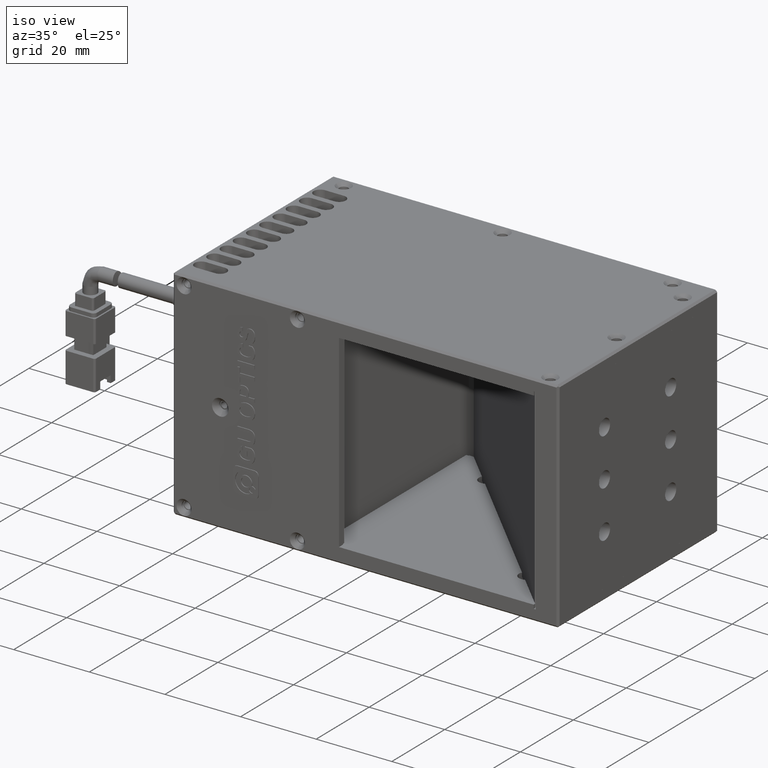
[diagram: clean part render]
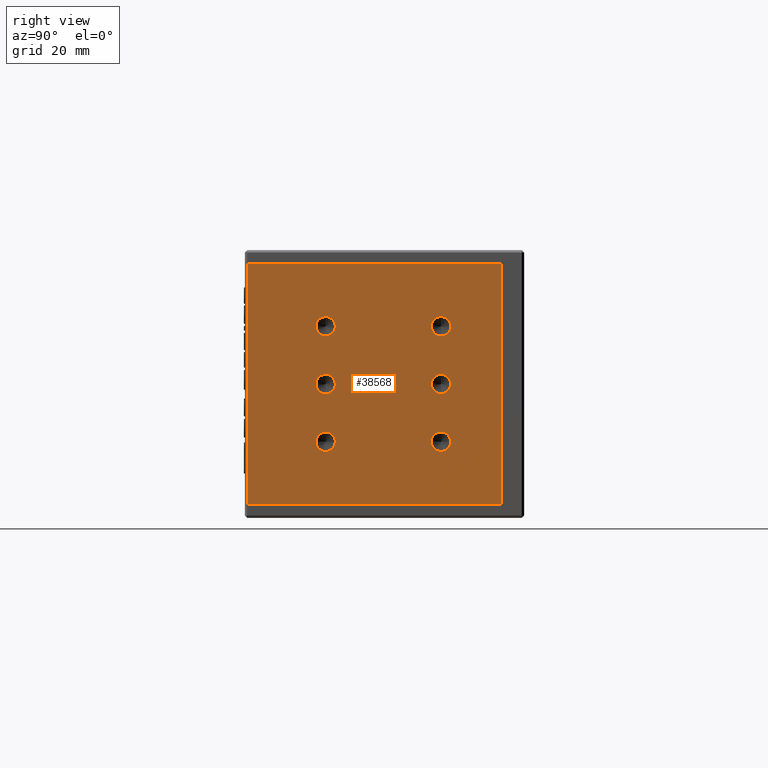
[diagram: tour spotlight — one face highlighted and labeled with its STEP entity id]
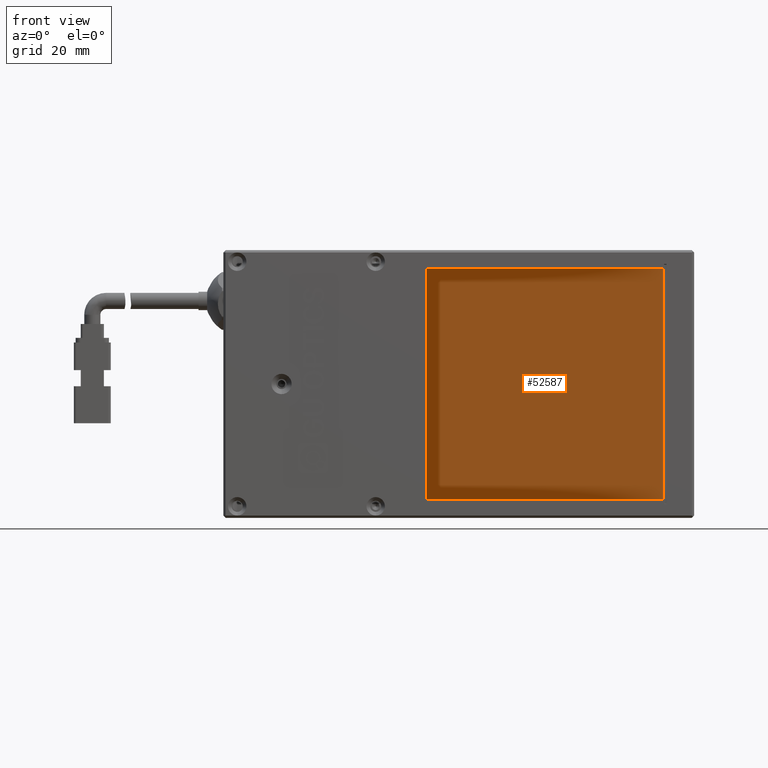
[diagram: tour spotlight — one face highlighted and labeled with its STEP entity id]
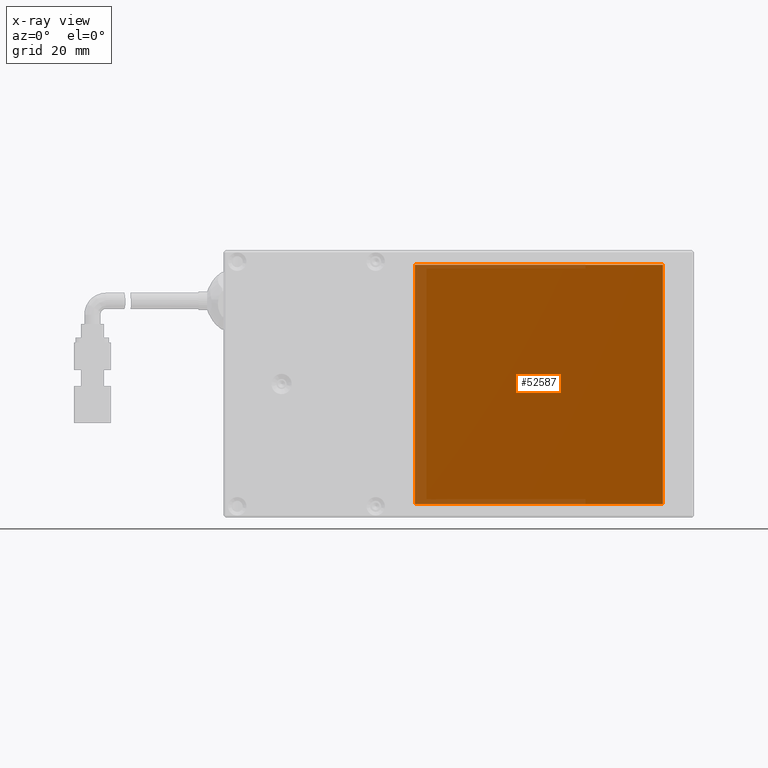
[diagram: x-ray of the same camera — body ghosted, this tour face saturated]
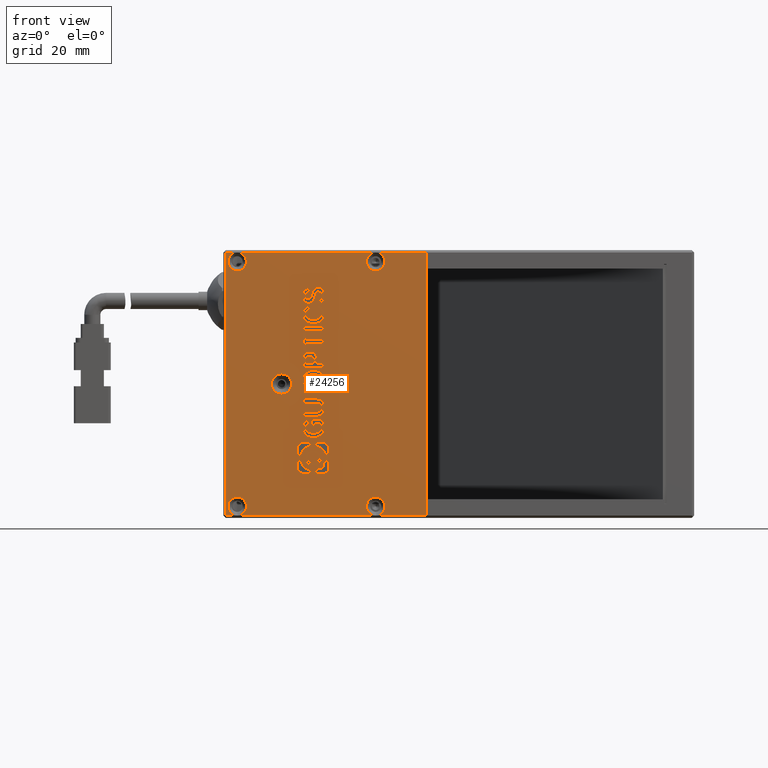
[diagram: tour spotlight — one face highlighted and labeled with its STEP entity id]
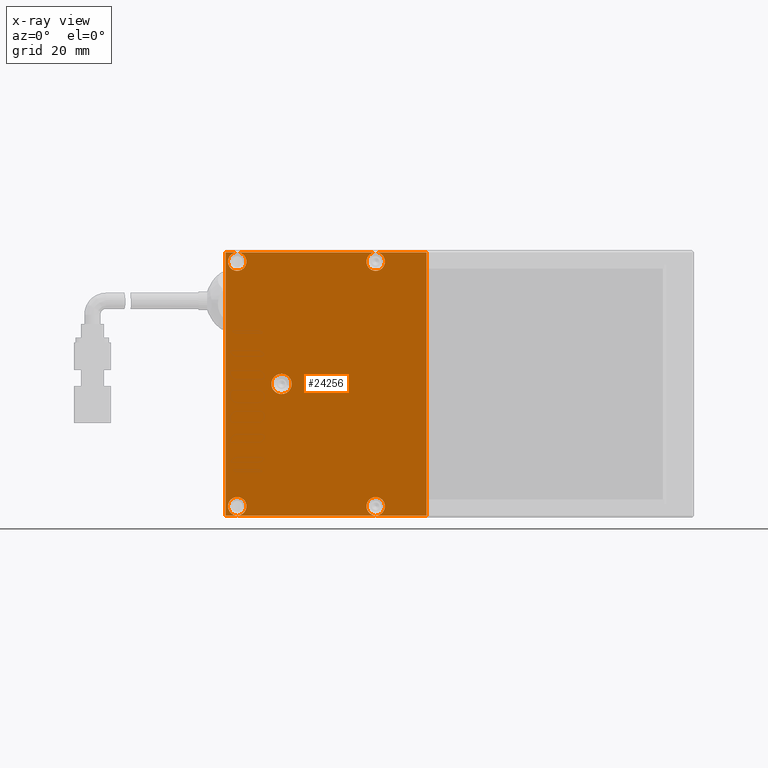
[diagram: x-ray of the same camera — body ghosted, this tour face saturated]
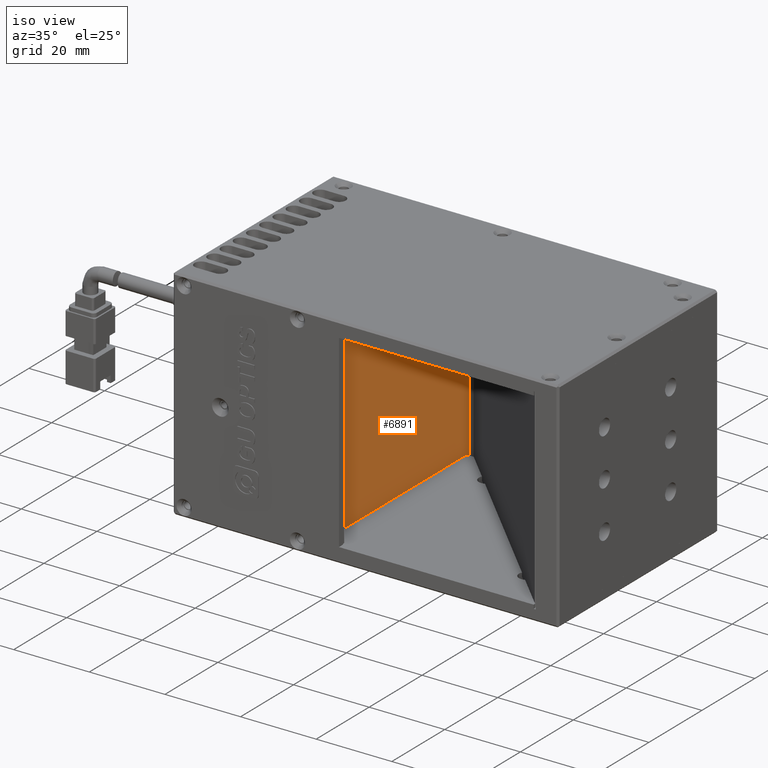
[diagram: tour spotlight — one face highlighted and labeled with its STEP entity id]
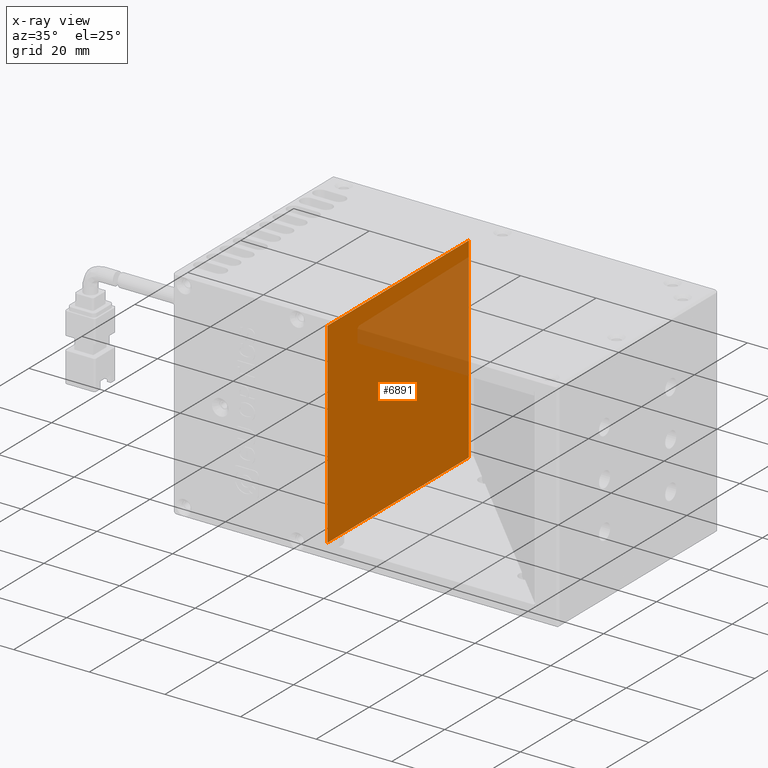
[diagram: x-ray of the same camera — body ghosted, this tour face saturated]
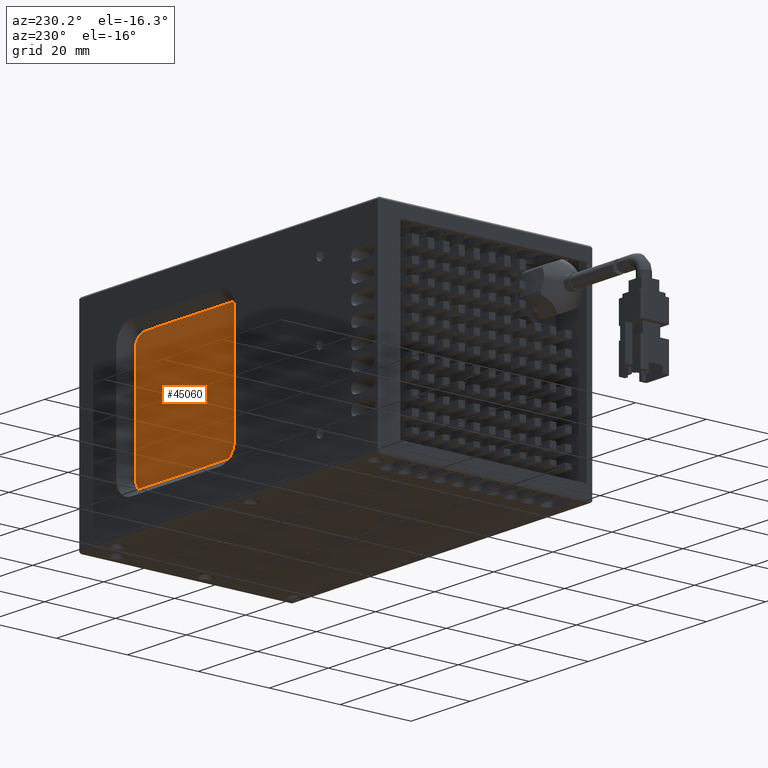
[diagram: tour spotlight — one face highlighted and labeled with its STEP entity id]
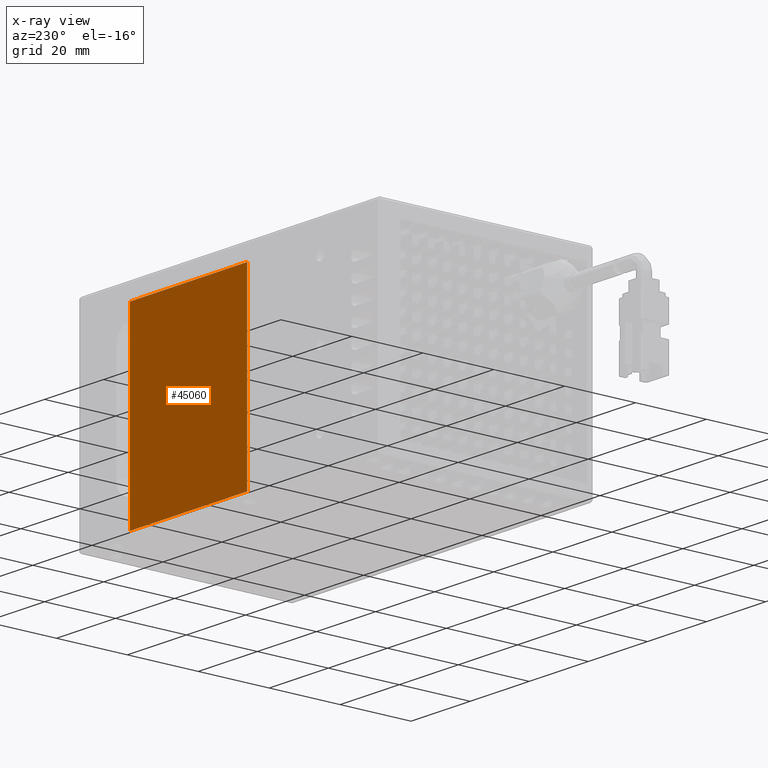
[diagram: x-ray of the same camera — body ghosted, this tour face saturated]
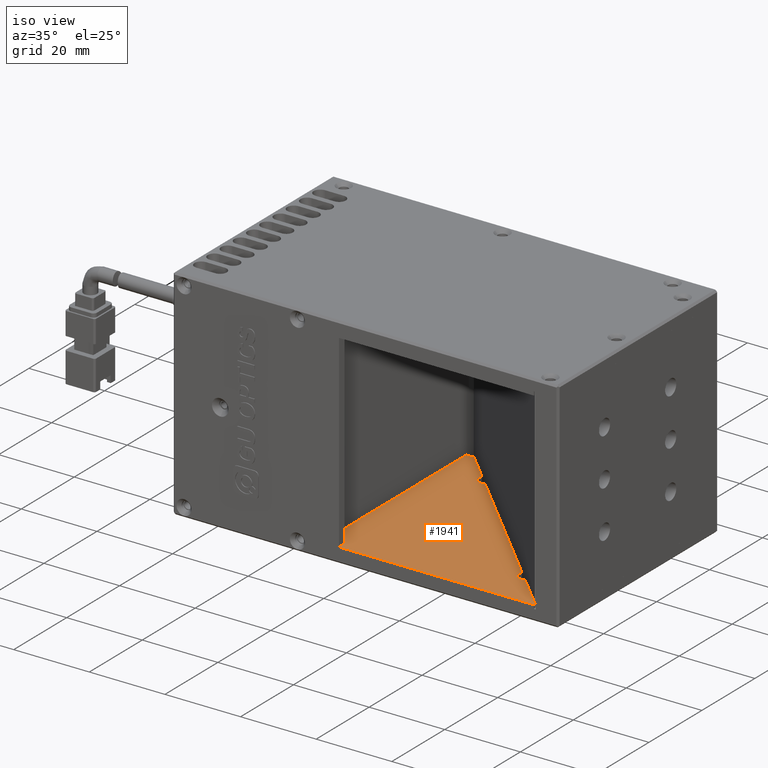
[diagram: tour spotlight — one face highlighted and labeled with its STEP entity id]
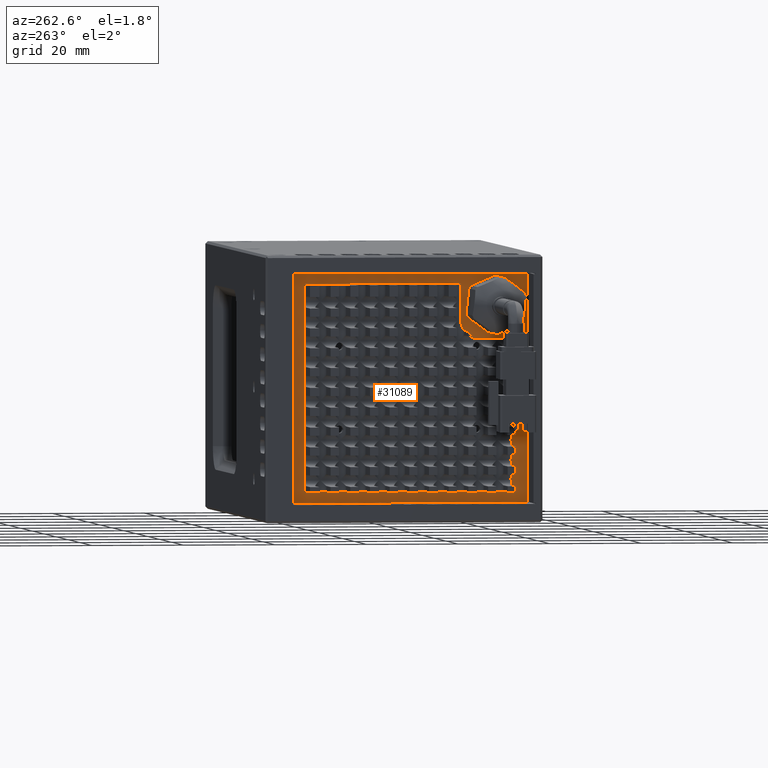
[diagram: tour spotlight — one face highlighted and labeled with its STEP entity id]
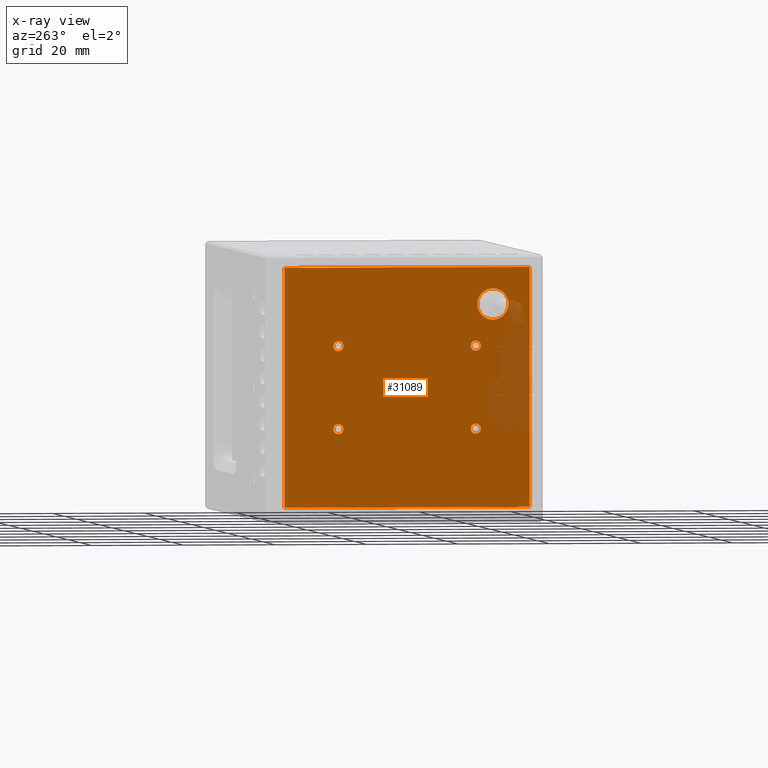
[diagram: x-ray of the same camera — body ghosted, this tour face saturated]
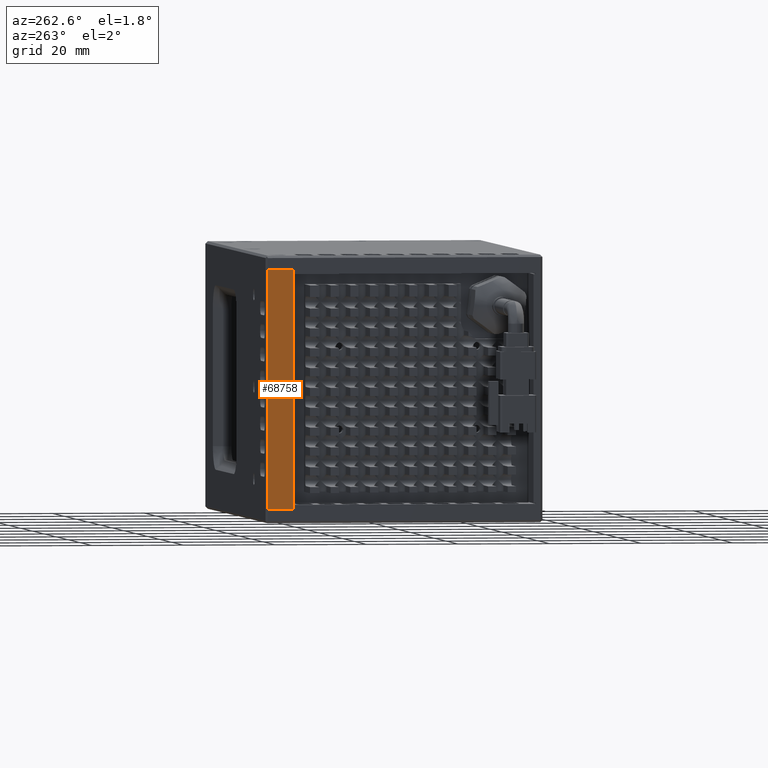
[diagram: tour spotlight — one face highlighted and labeled with its STEP entity id]
A machine part: a face-by-face anatomy tour. The part has 1568 B-rep faces; the first image is the clean iso view, then the 8 largest visible faces are spotlighted one at a time (largest first), each with its STEP entity span.

Face 1 — right view, entity #38568. In plain terms, the highlighted planar face has unit normal (-1, -0, -0).
Definition (entity closure, byte-faithful):
#122 = VERTEX_POINT ( 'NONE', #66999 ) ;
#392 = AXIS2_PLACEMENT_3D ( 'NONE', #4142, #41228, #9426 ) ;
#634 = ORIENTED_EDGE ( 'NONE', *, *, #60044, .T. ) ;
#935 = AXIS2_PLACEMENT_3D ( 'NONE', #37341, #5526, #42677 ) ;
#1750 = VECTOR ( 'NONE', #14206, 1000.000000000000000 ) ;
#1861 = EDGE_LOOP ( 'NONE', ( #35570, #46014 ) ) ;
#2228 = VERTEX_POINT ( 'NONE', #19945 ) ;
#2700 = CARTESIAN_POINT ( 'NONE',  ( 33.42575077608850600, 34.77699333090262000, 14.40000000000957100 ) ) ;
#2759 = CARTESIAN_POINT ( 'NONE',  ( 33.42575077608850600, 34.77699333090262000, 16.50000000000956400 ) ) ;
#3101 = CARTESIAN_POINT ( 'NONE',  ( 33.42575077608850600, 9.776993330902628900, 41.50000000000957100 ) ) ;
#3797 = ORIENTED_EDGE ( 'NONE', *, *, #22665, .T. ) ;
#4142 = CARTESIAN_POINT ( 'NONE',  ( 33.42575077608850600, 9.776993330902628900, 41.50000000000957100 ) ) ;
#4250 = VERTEX_POINT ( 'NONE', #57732 ) ;
#4418 = EDGE_CURVE ( 'NONE', #2228, #10589, #26854, .T. ) ;
#5331 = CIRCLE ( 'NONE', #24340, 2.099999999999994300 ) ;
#5526 = DIRECTION ( 'NONE',  ( -1.000000000000000000, -3.435095992033282000E-016, -3.435095992033281500E-016 ) ) ;
#7082 = EDGE_CURVE ( 'NONE', #18696, #39371, #51554, .T. ) ;
#7249 = DIRECTION ( 'NONE',  ( 1.000000000000000000, 3.435095992033282000E-016, 3.435095992033281500E-016 ) ) ;
#7388 = VERTEX_POINT ( 'NONE', #12038 ) ;
#7591 = VERTEX_POINT ( 'NONE', #44597 ) ;
#7670 = EDGE_CURVE ( 'NONE', #4250, #122, #8247, .T. ) ;
#8057 = DIRECTION ( 'NONE',  ( 0.0000000000000000000, 0.0000000000000000000, -1.000000000000000000 ) ) ;
#8247 = CIRCLE ( 'NONE', #39247, 2.099999999999990800 ) ;
#8415 = DIRECTION ( 'NONE',  ( 0.0000000000000000000, 0.0000000000000000000, -1.000000000000000000 ) ) ;
#8652 = CARTESIAN_POINT ( 'NONE',  ( 33.42575077608850600, -7.223006669097370200, 55.00000000000955700 ) ) ;
#9022 = VERTEX_POINT ( 'NONE', #2700 ) ;
#9202 = FACE_BOUND ( 'NONE', #12720, .T. ) ;
#9426 = DIRECTION ( 'NONE',  ( 0.0000000000000000000, 0.0000000000000000000, -1.000000000000000000 ) ) ;
#9653 = CARTESIAN_POINT ( 'NONE',  ( 33.42575077608848500, 47.77699333090262700, 55.00000000000954300 ) ) ;
#10196 = DIRECTION ( 'NONE',  ( 1.000000000000000000, 3.435095992033282000E-016, 3.435095992033281500E-016 ) ) ;
#10589 = VERTEX_POINT ( 'NONE', #65419 ) ;
#10629 = CIRCLE ( 'NONE', #40549, 2.099999999999990800 ) ;
#10776 = CARTESIAN_POINT ( 'NONE',  ( 33.42575077608849900, 34.77699333090262700, 29.00000000000956400 ) ) ;
#11181 = AXIS2_PLACEMENT_3D ( 'NONE', #42016, #10196, #47328 ) ;
#11598 = VERTEX_POINT ( 'NONE', #33517 ) ;
#11698 = CARTESIAN_POINT ( 'NONE',  ( 33.42575077608852000, -7.723006669097388000, 3.000000000009550600 ) ) ;
#11866 = CARTESIAN_POINT ( 'NONE',  ( 33.42575077608852000, -7.223006669097387100, 3.000000000009536800 ) ) ;
#12038 = CARTESIAN_POINT ( 'NONE',  ( 33.42575077608850600, 9.776993330902628900, 43.60000000000955800 ) ) ;
#12720 = EDGE_LOOP ( 'NONE', ( #48218, #63625 ) ) ;
#13471 = CARTESIAN_POINT ( 'NONE',  ( 33.42575077608852800, 9.776993330902618200, 16.50000000000957100 ) ) ;
#13496 = ORIENTED_EDGE ( 'NONE', *, *, #51798, .F. ) ;
#14206 = DIRECTION ( 'NONE',  ( 3.435095992033282500E-016, -3.435095992033281000E-016, -1.000000000000000000 ) ) ;
#14598 = ORIENTED_EDGE ( 'NONE', *, *, #35107, .F. ) ;
#14754 = CARTESIAN_POINT ( 'NONE',  ( 33.42575077608850600, 34.77699333090262000, 18.60000000000955500 ) ) ;
#15020 = LINE ( 'NONE', #11698, #55687 ) ;
#15175 = CIRCLE ( 'NONE', #30559, 2.099999999999994300 ) ;
#15937 = PLANE ( 'NONE',  #935 ) ;
#15961 = DIRECTION ( 'NONE',  ( 1.000000000000000000, 3.435095992033282000E-016, 3.435095992033281500E-016 ) ) ;
#16080 = DIRECTION ( 'NONE',  ( 0.0000000000000000000, 0.0000000000000000000, -1.000000000000000000 ) ) ;
#16823 = LINE ( 'NONE', #9653, #59150 ) ;
#16984 = DIRECTION ( 'NONE',  ( -3.435095992033281000E-016, 1.000000000000000000, -3.435095992033282000E-016 ) ) ;
#17086 = CARTESIAN_POINT ( 'NONE',  ( 33.42575077608850600, 47.77699333090260600, 3.000000000009529700 ) ) ;
#17108 = EDGE_CURVE ( 'NONE', #10589, #2228, #44471, .T. ) ;
#17497 = ORIENTED_EDGE ( 'NONE', *, *, #60681, .T. ) ;
#18012 = ORIENTED_EDGE ( 'NONE', *, *, #33581, .F. ) ;
#18570 = CARTESIAN_POINT ( 'NONE',  ( 33.42575077608852800, 9.776993330902621800, 31.10000000000959400 ) ) ;
#18696 = VERTEX_POINT ( 'NONE', #19128 ) ;
#18769 = DIRECTION ( 'NONE',  ( 0.0000000000000000000, 0.0000000000000000000, -1.000000000000000000 ) ) ;
#19128 = CARTESIAN_POINT ( 'NONE',  ( 33.42575077608852800, 9.776993330902621800, 26.90000000000960500 ) ) ;
#19579 = VERTEX_POINT ( 'NONE', #17086 ) ;
#19945 = CARTESIAN_POINT ( 'NONE',  ( 33.42575077608849200, 34.77699333090262700, 39.40000000000957000 ) ) ;
#19963 = CARTESIAN_POINT ( 'NONE',  ( 33.42575077608850600, -7.723006669097370200, 55.00000000000955700 ) ) ;
#20532 = ORIENTED_EDGE ( 'NONE', *, *, #66023, .T. ) ;
#20568 = AXIS2_PLACEMENT_3D ( 'NONE', #2759, #39899, #8057 ) ;
#22217 = EDGE_LOOP ( 'NONE', ( #13496, #31590 ) ) ;
#22222 = CARTESIAN_POINT ( 'NONE',  ( 33.42575077608849200, 34.77699333090262700, 41.50000000000956400 ) ) ;
#22665 = EDGE_CURVE ( 'NONE', #58643, #28768, #56437, .T. ) ;
#22830 = CARTESIAN_POINT ( 'NONE',  ( 33.42575077608850600, -7.223006669097370200, 55.00000000000955700 ) ) ;
#23276 = FACE_BOUND ( 'NONE', #68799, .T. ) ;
#24340 = AXIS2_PLACEMENT_3D ( 'NONE', #10776, #47894, #16080 ) ;
#24934 = FACE_OUTER_BOUND ( 'NONE', #36154, .T. ) ;
#26428 = AXIS2_PLACEMENT_3D ( 'NONE', #59584, #27830, #64928 ) ;
#26644 = FACE_BOUND ( 'NONE', #44584, .T. ) ;
#26854 = CIRCLE ( 'NONE', #46531, 2.099999999999997900 ) ;
#27614 = DIRECTION ( 'NONE',  ( 0.0000000000000000000, 0.0000000000000000000, -1.000000000000000000 ) ) ;
#27830 = DIRECTION ( 'NONE',  ( 1.000000000000000000, 3.435095992033282000E-016, 3.435095992033281500E-016 ) ) ;
#28368 = DIRECTION ( 'NONE',  ( 1.000000000000000000, 3.435095992033282000E-016, 3.435095992033281500E-016 ) ) ;
#28768 = VERTEX_POINT ( 'NONE', #11866 ) ;
#28985 = ORIENTED_EDGE ( 'NONE', *, *, #63002, .F. ) ;
#30522 = ORIENTED_EDGE ( 'NONE', *, *, #57419, .F. ) ;
#30559 = AXIS2_PLACEMENT_3D ( 'NONE', #47767, #15961, #53039 ) ;
#31007 = AXIS2_PLACEMENT_3D ( 'NONE', #63198, #31482, #68505 ) ;
#31482 = DIRECTION ( 'NONE',  ( 1.000000000000000000, 3.435095992033282000E-016, 3.435095992033281500E-016 ) ) ;
#31590 = ORIENTED_EDGE ( 'NONE', *, *, #48326, .F. ) ;
#31703 = AXIS2_PLACEMENT_3D ( 'NONE', #39063, #7249, #44381 ) ;
#32465 = VERTEX_POINT ( 'NONE', #36111 ) ;
#32577 = CARTESIAN_POINT ( 'NONE',  ( 33.42575077608850600, 9.776993330902628900, 39.40000000000957700 ) ) ;
#33066 = EDGE_LOOP ( 'NONE', ( #43013, #14598 ) ) ;
#33517 = CARTESIAN_POINT ( 'NONE',  ( 33.42575077608849900, 34.77699333090262700, 26.90000000000957000 ) ) ;
#33581 = EDGE_CURVE ( 'NONE', #11598, #32465, #15175, .T. ) ;
#35107 = EDGE_CURVE ( 'NONE', #63778, #9022, #38106, .T. ) ;
#35570 = ORIENTED_EDGE ( 'NONE', *, *, #64644, .F. ) ;
#36111 = CARTESIAN_POINT ( 'NONE',  ( 33.42575077608849900, 34.77699333090262700, 31.10000000000955800 ) ) ;
#36154 = EDGE_LOOP ( 'NONE', ( #3797, #17497, #634, #20532 ) ) ;
#36800 = ORIENTED_EDGE ( 'NONE', *, *, #7082, .F. ) ;
#37341 = CARTESIAN_POINT ( 'NONE',  ( 33.42575077608848500, 47.77699333090262700, 55.00000000000954300 ) ) ;
#37465 = FACE_BOUND ( 'NONE', #33066, .T. ) ;
#38106 = CIRCLE ( 'NONE', #31703, 2.099999999999990800 ) ;
#38568 = ADVANCED_FACE ( 'NONE', ( #24934, #53152, #26644, #51509, #37465, #23276, #9202 ), #15937, .F. ) ;
#39063 = CARTESIAN_POINT ( 'NONE',  ( 33.42575077608850600, 34.77699333090262000, 16.50000000000956400 ) ) ;
#39247 = AXIS2_PLACEMENT_3D ( 'NONE', #13471, #50560, #18769 ) ;
#39371 = VERTEX_POINT ( 'NONE', #18570 ) ;
#39899 = DIRECTION ( 'NONE',  ( 1.000000000000000000, 3.435095992033282000E-016, 3.435095992033281500E-016 ) ) ;
#40240 = DIRECTION ( 'NONE',  ( 1.000000000000000000, 3.435095992033282000E-016, 3.435095992033281500E-016 ) ) ;
#40549 = AXIS2_PLACEMENT_3D ( 'NONE', #3101, #40240, #8415 ) ;
#41228 = DIRECTION ( 'NONE',  ( 1.000000000000000000, 3.435095992033282000E-016, 3.435095992033281500E-016 ) ) ;
#41490 = DIRECTION ( 'NONE',  ( -3.435095992033282500E-016, 3.435095992033281000E-016, 1.000000000000000000 ) ) ;
#42016 = CARTESIAN_POINT ( 'NONE',  ( 33.42575077608852800, 9.776993330902621800, 29.00000000000959900 ) ) ;
#42677 = DIRECTION ( 'NONE',  ( -3.435095992033282500E-016, 3.435095992033281000E-016, 1.000000000000000000 ) ) ;
#43013 = ORIENTED_EDGE ( 'NONE', *, *, #59888, .F. ) ;
#44381 = DIRECTION ( 'NONE',  ( 0.0000000000000000000, 0.0000000000000000000, -1.000000000000000000 ) ) ;
#44471 = CIRCLE ( 'NONE', #31007, 2.099999999999997900 ) ;
#44584 = EDGE_LOOP ( 'NONE', ( #36800, #28985 ) ) ;
#44597 = CARTESIAN_POINT ( 'NONE',  ( 33.42575077608848500, 47.77699333090262700, 55.00000000000954300 ) ) ;
#46014 = ORIENTED_EDGE ( 'NONE', *, *, #7670, .F. ) ;
#46531 = AXIS2_PLACEMENT_3D ( 'NONE', #22222, #59349, #27614 ) ;
#46875 = CIRCLE ( 'NONE', #392, 2.099999999999990800 ) ;
#47328 = DIRECTION ( 'NONE',  ( 0.0000000000000000000, 0.0000000000000000000, -1.000000000000000000 ) ) ;
#47767 = CARTESIAN_POINT ( 'NONE',  ( 33.42575077608849900, 34.77699333090262700, 29.00000000000956400 ) ) ;
#47894 = DIRECTION ( 'NONE',  ( 1.000000000000000000, 3.435095992033282000E-016, 3.435095992033281500E-016 ) ) ;
#48218 = ORIENTED_EDGE ( 'NONE', *, *, #4418, .F. ) ;
#48326 = EDGE_CURVE ( 'NONE', #7388, #51037, #10629, .T. ) ;
#50560 = DIRECTION ( 'NONE',  ( 1.000000000000000000, 3.435095992033282000E-016, 3.435095992033281500E-016 ) ) ;
#51037 = VERTEX_POINT ( 'NONE', #32577 ) ;
#51509 = FACE_BOUND ( 'NONE', #22217, .T. ) ;
#51516 = DIRECTION ( 'NONE',  ( 3.435095992033281000E-016, -1.000000000000000000, 3.435095992033282000E-016 ) ) ;
#51554 = CIRCLE ( 'NONE', #11181, 2.099999999999994300 ) ;
#51626 = CIRCLE ( 'NONE', #67508, 2.099999999999994300 ) ;
#51798 = EDGE_CURVE ( 'NONE', #51037, #7388, #46875, .T. ) ;
#52513 = CIRCLE ( 'NONE', #20568, 2.099999999999990800 ) ;
#53039 = DIRECTION ( 'NONE',  ( 0.0000000000000000000, 0.0000000000000000000, -1.000000000000000000 ) ) ;
#53152 = FACE_BOUND ( 'NONE', #1861, .T. ) ;
#55687 = VECTOR ( 'NONE', #16984, 1000.000000000000000 ) ;
#56437 = LINE ( 'NONE', #8652, #1750 ) ;
#57419 = EDGE_CURVE ( 'NONE', #32465, #11598, #5331, .T. ) ;
#57732 = CARTESIAN_POINT ( 'NONE',  ( 33.42575077608852800, 9.776993330902618200, 18.60000000000956200 ) ) ;
#58643 = VERTEX_POINT ( 'NONE', #22830 ) ;
#59150 = VECTOR ( 'NONE', #41490, 1000.000000000000000 ) ;
#59349 = DIRECTION ( 'NONE',  ( 1.000000000000000000, 3.435095992033282000E-016, 3.435095992033281500E-016 ) ) ;
#59357 = CIRCLE ( 'NONE', #26428, 2.099999999999990800 ) ;
#59584 = CARTESIAN_POINT ( 'NONE',  ( 33.42575077608852800, 9.776993330902618200, 16.50000000000957100 ) ) ;
#59888 = EDGE_CURVE ( 'NONE', #9022, #63778, #52513, .T. ) ;
#60044 = EDGE_CURVE ( 'NONE', #19579, #7591, #16823, .T. ) ;
#60114 = CARTESIAN_POINT ( 'NONE',  ( 33.42575077608852800, 9.776993330902621800, 29.00000000000959900 ) ) ;
#60681 = EDGE_CURVE ( 'NONE', #28768, #19579, #15020, .T. ) ;
#63002 = EDGE_CURVE ( 'NONE', #39371, #18696, #51626, .T. ) ;
#63198 = CARTESIAN_POINT ( 'NONE',  ( 33.42575077608849200, 34.77699333090262700, 41.50000000000956400 ) ) ;
#63625 = ORIENTED_EDGE ( 'NONE', *, *, #17108, .F. ) ;
#63778 = VERTEX_POINT ( 'NONE', #14754 ) ;
#64644 = EDGE_CURVE ( 'NONE', #122, #4250, #59357, .T. ) ;
#64928 = DIRECTION ( 'NONE',  ( 0.0000000000000000000, 0.0000000000000000000, -1.000000000000000000 ) ) ;
#65419 = CARTESIAN_POINT ( 'NONE',  ( 33.42575077608849200, 34.77699333090262700, 43.60000000000955800 ) ) ;
#65453 = DIRECTION ( 'NONE',  ( 0.0000000000000000000, 0.0000000000000000000, -1.000000000000000000 ) ) ;
#66023 = EDGE_CURVE ( 'NONE', #7591, #58643, #67896, .T. ) ;
#66251 = VECTOR ( 'NONE', #51516, 1000.000000000000000 ) ;
#66999 = CARTESIAN_POINT ( 'NONE',  ( 33.42575077608852800, 9.776993330902618200, 14.40000000000957800 ) ) ;
#67508 = AXIS2_PLACEMENT_3D ( 'NONE', #60114, #28368, #65453 ) ;
#67896 = LINE ( 'NONE', #19963, #66251 ) ;
#68505 = DIRECTION ( 'NONE',  ( 0.0000000000000000000, 0.0000000000000000000, -1.000000000000000000 ) ) ;
#68799 = EDGE_LOOP ( 'NONE', ( #18012, #30522 ) ) ;

Face 2 — front view, entity #52587. An x-ray twin of the same camera follows (body ghosted, this face saturated) — the face is partly hidden behind the body. In plain terms, the highlighted planar face has unit normal (0.7071, 0.7071, -0).
Definition (entity closure, byte-faithful):
#941 = LINE ( 'NONE', #7959, #14991 ) ;
#1126 = VERTEX_POINT ( 'NONE', #41264 ) ;
#1144 = DIRECTION ( 'NONE',  ( -0.7071067811865451300, 0.7071067811865500200, 1.698058585119154400E-016 ) ) ;
#1923 = PLANE ( 'NONE',  #21793 ) ;
#2116 = DIRECTION ( 'NONE',  ( 0.7071067811865451300, -0.7071067811865500200, -7.850462293418873400E-017 ) ) ;
#2863 = CARTESIAN_POINT ( 'NONE',  ( -27.09218205339413600, 46.83530675261436500, 3.000000000009554100 ) ) ;
#6431 = ORIENTED_EDGE ( 'NONE', *, *, #21943, .T. ) ;
#6461 = EDGE_CURVE ( 'NONE', #1126, #44849, #36748, .T. ) ;
#7959 = CARTESIAN_POINT ( 'NONE',  ( 26.64793331678329100, -6.904808617563432400, 3.000000000009547000 ) ) ;
#14773 = DIRECTION ( 'NONE',  ( -5.551115123125762400E-017, 5.551115123125800000E-017, -1.000000000000000000 ) ) ;
#14991 = VECTOR ( 'NONE', #44894, 1000.000000000000100 ) ;
#16852 = VECTOR ( 'NONE', #1144, 1000.000000000000100 ) ;
#17093 = VECTOR ( 'NONE', #14773, 1000.000000000000000 ) ;
#21793 = AXIS2_PLACEMENT_3D ( 'NONE', #65640, #33906, #2116 ) ;
#21943 = EDGE_CURVE ( 'NONE', #44849, #40732, #57500, .T. ) ;
#22468 = FACE_OUTER_BOUND ( 'NONE', #62969, .T. ) ;
#22582 = EDGE_CURVE ( 'NONE', #55073, #1126, #941, .T. ) ;
#22591 = VECTOR ( 'NONE', #25589, 1000.000000000000000 ) ;
#25589 = DIRECTION ( 'NONE',  ( 5.551115123125762400E-017, -5.551115123125800000E-017, 1.000000000000000000 ) ) ;
#33906 = DIRECTION ( 'NONE',  ( 0.7071067811865500200, 0.7071067811865451300, -6.162975822039154700E-033 ) ) ;
#36748 = LINE ( 'NONE', #46724, #22591 ) ;
#40732 = VERTEX_POINT ( 'NONE', #64807 ) ;
#41264 = CARTESIAN_POINT ( 'NONE',  ( 26.64793331678329100, -6.904808617563432400, 3.000000000009547000 ) ) ;
#44849 = VERTEX_POINT ( 'NONE', #58606 ) ;
#44894 = DIRECTION ( 'NONE',  ( 0.7071067811865451300, -0.7071067811865500200, -1.241552407230520800E-016 ) ) ;
#46600 = CARTESIAN_POINT ( 'NONE',  ( -27.09218205339413600, 46.83530675261436500, 54.80000000000956800 ) ) ;
#46724 = CARTESIAN_POINT ( 'NONE',  ( 26.64793331678329100, -6.904808617563432400, 54.80000000000955400 ) ) ;
#48674 = LINE ( 'NONE', #46600, #17093 ) ;
#52587 = ADVANCED_FACE ( 'NONE', ( #22468 ), #1923, .F. ) ;
#55073 = VERTEX_POINT ( 'NONE', #2863 ) ;
#55164 = ORIENTED_EDGE ( 'NONE', *, *, #22582, .T. ) ;
#57500 = LINE ( 'NONE', #64876, #16852 ) ;
#58606 = CARTESIAN_POINT ( 'NONE',  ( 26.64793331678329100, -6.904808617563432400, 54.80000000000956100 ) ) ;
#62120 = EDGE_CURVE ( 'NONE', #40732, #55073, #48674, .T. ) ;
#62969 = EDGE_LOOP ( 'NONE', ( #55164, #64378, #6431, #64075 ) ) ;
#64075 = ORIENTED_EDGE ( 'NONE', *, *, #62120, .T. ) ;
#64378 = ORIENTED_EDGE ( 'NONE', *, *, #6461, .T. ) ;
#64807 = CARTESIAN_POINT ( 'NONE',  ( -27.09218205339413600, 46.83530675261436500, 54.80000000000956800 ) ) ;
#64876 = CARTESIAN_POINT ( 'NONE',  ( 26.64793331678329100, -6.904808617563432400, 54.80000000000955400 ) ) ;
#65640 = CARTESIAN_POINT ( 'NONE',  ( -0.2221243683054180400, 19.96524906752546300, 28.90000000000954800 ) ) ;

Face 3 — front view, entity #24256. An x-ray twin of the same camera follows (body ghosted, this face saturated) — the face is partly hidden behind the body. In plain terms, the highlighted planar face has unit normal (0, -1, 0).
Definition (entity closure, byte-faithful):
#96 = CARTESIAN_POINT ( 'NONE',  ( -65.57424922391152200, -7.723006669106910100, 0.5000000000342508200 ) ) ;
#638 = EDGE_CURVE ( 'NONE', #14684, #28610, #34203, .T. ) ;
#735 = DIRECTION ( 'NONE',  ( -1.196391117533724800E-016, 1.000000000000000000, -2.687133370730801500E-017 ) ) ;
#961 = CARTESIAN_POINT ( 'NONE',  ( -65.57424922391152200, -7.723006669106910100, 2.500000000009550100 ) ) ;
#1095 = CARTESIAN_POINT ( 'NONE',  ( -68.07424922391152200, -7.723006669097358700, 58.00000000000955000 ) ) ;
#2027 = ORIENTED_EDGE ( 'NONE', *, *, #37576, .T. ) ;
#2414 = EDGE_CURVE ( 'NONE', #6576, #36117, #41197, .T. ) ;
#2749 = VERTEX_POINT ( 'NONE', #46123 ) ;
#2970 = CARTESIAN_POINT ( 'NONE',  ( -65.57424922391150800, -7.723006669163751800, 53.50000000003697700 ) ) ;
#5383 = CARTESIAN_POINT ( 'NONE',  ( -55.97424922391153500, -7.723006669050064900, 26.80000000008579200 ) ) ;
#5753 = EDGE_CURVE ( 'NONE', #40793, #2749, #47781, .T. ) ;
#6276 = DIRECTION ( 'NONE',  ( 0.0000000000000000000, 0.0000000000000000000, 1.000000000000000000 ) ) ;
#6576 = VERTEX_POINT ( 'NONE', #96 ) ;
#6645 = DIRECTION ( 'NONE',  ( -7.632783294297951200E-017, -2.687133370730802500E-017, -1.000000000000000000 ) ) ;
#6909 = AXIS2_PLACEMENT_3D ( 'NONE', #44086, #12269, #49371 ) ;
#7012 = AXIS2_PLACEMENT_3D ( 'NONE', #18915, #56013, #24218 ) ;
#7277 = VERTEX_POINT ( 'NONE', #43415 ) ;
#7982 = ORIENTED_EDGE ( 'NONE', *, *, #33515, .T. ) ;
#8046 = PLANE ( 'NONE',  #45093 ) ;
#8819 = ORIENTED_EDGE ( 'NONE', *, *, #23476, .T. ) ;
#9258 = LINE ( 'NONE', #33429, #30836 ) ;
#9272 = VERTEX_POINT ( 'NONE', #63387 ) ;
#10416 = FACE_OUTER_BOUND ( 'NONE', #52209, .T. ) ;
#11145 = ORIENTED_EDGE ( 'NONE', *, *, #36458, .T. ) ;
#11262 = ORIENTED_EDGE ( 'NONE', *, *, #60149, .T. ) ;
#11372 = AXIS2_PLACEMENT_3D ( 'NONE', #52861, #21085, #58230 ) ;
#11662 = LINE ( 'NONE', #23540, #38237 ) ;
#12110 = FACE_BOUND ( 'NONE', #15569, .T. ) ;
#12269 = DIRECTION ( 'NONE',  ( -1.196391117533724800E-016, 1.000000000000000000, -2.687133370730801500E-017 ) ) ;
#13113 = ORIENTED_EDGE ( 'NONE', *, *, #58125, .T. ) ;
#13742 = FACE_BOUND ( 'NONE', #31578, .T. ) ;
#14204 = CIRCLE ( 'NONE', #23132, 1.999999999975299300 ) ;
#14684 = VERTEX_POINT ( 'NONE', #50416 ) ;
#14835 = VERTEX_POINT ( 'NONE', #20014 ) ;
#15569 = EDGE_LOOP ( 'NONE', ( #34891, #38154 ) ) ;
#15977 = CARTESIAN_POINT ( 'NONE',  ( -55.97424922391153500, -7.723006669050064900, 29.00000000000953500 ) ) ;
#16399 = DIRECTION ( 'NONE',  ( -1.196391117533724800E-016, 1.000000000000000000, -2.687133370730801500E-017 ) ) ;
#16436 = CARTESIAN_POINT ( 'NONE',  ( -24.57424922391151500, -7.723006669097353300, 57.50000000000955000 ) ) ;
#16762 = ORIENTED_EDGE ( 'NONE', *, *, #5753, .T. ) ;
#16838 = CARTESIAN_POINT ( 'NONE',  ( -35.57424922391150100, -7.723006669163748200, 53.50000000003697000 ) ) ;
#17594 = VECTOR ( 'NONE', #42176, 1000.000000000000000 ) ;
#17683 = CARTESIAN_POINT ( 'NONE',  ( -35.57424922391150800, -7.723006669106906600, 0.5000000000342439400 ) ) ;
#18776 = CARTESIAN_POINT ( 'NONE',  ( -68.07424922391152200, -7.723006669097360400, 0.5000000000095414800 ) ) ;
#18869 = AXIS2_PLACEMENT_3D ( 'NONE', #48216, #16399, #53490 ) ;
#18915 = CARTESIAN_POINT ( 'NONE',  ( -35.57424922391150100, -7.723006669163748200, 55.50000000000954300 ) ) ;
#19018 = EDGE_CURVE ( 'NONE', #2749, #40793, #14204, .T. ) ;
#19741 = EDGE_CURVE ( 'NONE', #29087, #7277, #11662, .T. ) ;
#20014 = CARTESIAN_POINT ( 'NONE',  ( -65.57424922391150800, -7.723006669163751800, 57.49999999998212300 ) ) ;
#21085 = DIRECTION ( 'NONE',  ( -1.196391117533724800E-016, 1.000000000000000000, -2.687133370730801500E-017 ) ) ;
#21280 = DIRECTION ( 'NONE',  ( 0.0000000000000000000, 0.0000000000000000000, 1.000000000000000000 ) ) ;
#21504 = CARTESIAN_POINT ( 'NONE',  ( -35.57424922391150100, -7.723006669163748200, 55.50000000000954300 ) ) ;
#23132 = AXIS2_PLACEMENT_3D ( 'NONE', #32525, #735, #37845 ) ;
#23417 = AXIS2_PLACEMENT_3D ( 'NONE', #24947, #62070, #30316 ) ;
#23476 = EDGE_CURVE ( 'NONE', #9272, #34420, #32312, .T. ) ;
#23540 = CARTESIAN_POINT ( 'NONE',  ( -68.57424922391152200, -7.723006669097360400, 0.5000000000095414800 ) ) ;
#24218 = DIRECTION ( 'NONE',  ( 0.0000000000000000000, 0.0000000000000000000, 1.000000000000000000 ) ) ;
#24235 = DIRECTION ( 'NONE',  ( 1.196391117533724800E-016, -1.000000000000000000, 2.687133370730801500E-017 ) ) ;
#24256 = ADVANCED_FACE ( 'NONE', ( #38687, #13742, #12110, #24485, #10416, #65188 ), #8046, .T. ) ;
#24485 = FACE_BOUND ( 'NONE', #66286, .T. ) ;
#24947 = CARTESIAN_POINT ( 'NONE',  ( -35.57424922391150800, -7.723006669106906600, 2.500000000009543000 ) ) ;
#25959 = DIRECTION ( 'NONE',  ( -1.196391117533724800E-016, 1.000000000000000000, -2.687133370730801500E-017 ) ) ;
#26613 = CARTESIAN_POINT ( 'NONE',  ( -68.07424922391150800, -7.723006669097360400, 57.50000000000955700 ) ) ;
#26881 = DIRECTION ( 'NONE',  ( 0.0000000000000000000, 0.0000000000000000000, 1.000000000000000000 ) ) ;
#27974 = ORIENTED_EDGE ( 'NONE', *, *, #19018, .T. ) ;
#28610 = VERTEX_POINT ( 'NONE', #5383 ) ;
#28810 = EDGE_LOOP ( 'NONE', ( #27974, #16762 ) ) ;
#29049 = CIRCLE ( 'NONE', #11372, 1.999999999975299300 ) ;
#29087 = VERTEX_POINT ( 'NONE', #18776 ) ;
#29361 = VERTEX_POINT ( 'NONE', #16436 ) ;
#30316 = DIRECTION ( 'NONE',  ( 0.0000000000000000000, 0.0000000000000000000, 1.000000000000000000 ) ) ;
#30836 = VECTOR ( 'NONE', #38783, 1000.000000000000000 ) ;
#31578 = EDGE_LOOP ( 'NONE', ( #11145, #52913 ) ) ;
#31708 = CARTESIAN_POINT ( 'NONE',  ( -24.57424922391151200, -7.723006669097353300, 58.00000000000954300 ) ) ;
#32312 = CIRCLE ( 'NONE', #66245, 1.999999999972572400 ) ;
#32525 = CARTESIAN_POINT ( 'NONE',  ( -35.57424922391150800, -7.723006669106906600, 2.500000000009543000 ) ) ;
#33362 = CARTESIAN_POINT ( 'NONE',  ( -65.57424922391152200, -7.723006669106910100, 4.499999999984849500 ) ) ;
#33429 = CARTESIAN_POINT ( 'NONE',  ( -68.57424922391150800, -7.723006669097358700, 57.50000000000955700 ) ) ;
#33515 = EDGE_CURVE ( 'NONE', #28610, #14684, #50069, .T. ) ;
#34203 = CIRCLE ( 'NONE', #35045, 2.199999999923742100 ) ;
#34373 = CIRCLE ( 'NONE', #18869, 1.999999999972572400 ) ;
#34420 = VERTEX_POINT ( 'NONE', #16838 ) ;
#34891 = ORIENTED_EDGE ( 'NONE', *, *, #65047, .T. ) ;
#35045 = AXIS2_PLACEMENT_3D ( 'NONE', #15977, #53050, #21280 ) ;
#36117 = VERTEX_POINT ( 'NONE', #33362 ) ;
#36458 = EDGE_CURVE ( 'NONE', #36117, #6576, #29049, .T. ) ;
#37248 = EDGE_CURVE ( 'NONE', #34420, #9272, #68663, .T. ) ;
#37576 = EDGE_CURVE ( 'NONE', #44856, #29087, #59457, .T. ) ;
#37759 = ORIENTED_EDGE ( 'NONE', *, *, #19741, .T. ) ;
#37845 = DIRECTION ( 'NONE',  ( 0.0000000000000000000, 0.0000000000000000000, 1.000000000000000000 ) ) ;
#38068 = DIRECTION ( 'NONE',  ( -1.196391117533724800E-016, 1.000000000000000000, -2.687133370730801500E-017 ) ) ;
#38154 = ORIENTED_EDGE ( 'NONE', *, *, #50023, .T. ) ;
#38237 = VECTOR ( 'NONE', #60662, 1000.000000000000000 ) ;
#38687 = FACE_BOUND ( 'NONE', #28810, .T. ) ;
#38783 = DIRECTION ( 'NONE',  ( -1.000000000000000000, -1.196391117533724800E-016, 7.632783294297951200E-017 ) ) ;
#40793 = VERTEX_POINT ( 'NONE', #17683 ) ;
#41197 = CIRCLE ( 'NONE', #48558, 1.999999999975299300 ) ;
#42176 = DIRECTION ( 'NONE',  ( 7.632783294297951200E-017, 2.687133370730802500E-017, 1.000000000000000000 ) ) ;
#43415 = CARTESIAN_POINT ( 'NONE',  ( -24.57424922391151500, -7.723006669097355100, 0.5000000000095344800 ) ) ;
#44086 = CARTESIAN_POINT ( 'NONE',  ( -65.57424922391150800, -7.723006669163751800, 55.50000000000955000 ) ) ;
#44856 = VERTEX_POINT ( 'NONE', #26613 ) ;
#45093 = AXIS2_PLACEMENT_3D ( 'NONE', #56029, #24235, #61391 ) ;
#45385 = VECTOR ( 'NONE', #6645, 1000.000000000000000 ) ;
#45790 = ORIENTED_EDGE ( 'NONE', *, *, #37248, .T. ) ;
#46123 = CARTESIAN_POINT ( 'NONE',  ( -35.57424922391150800, -7.723006669106906600, 4.499999999984842300 ) ) ;
#47781 = CIRCLE ( 'NONE', #23417, 1.999999999975299300 ) ;
#48216 = CARTESIAN_POINT ( 'NONE',  ( -65.57424922391150800, -7.723006669163751800, 55.50000000000955000 ) ) ;
#48558 = AXIS2_PLACEMENT_3D ( 'NONE', #961, #38068, #6276 ) ;
#48818 = EDGE_LOOP ( 'NONE', ( #68457, #7982 ) ) ;
#49283 = CIRCLE ( 'NONE', #6909, 1.999999999972572400 ) ;
#49371 = DIRECTION ( 'NONE',  ( 0.0000000000000000000, 0.0000000000000000000, 1.000000000000000000 ) ) ;
#50023 = EDGE_CURVE ( 'NONE', #50169, #14835, #49283, .T. ) ;
#50069 = CIRCLE ( 'NONE', #67381, 2.199999999923742100 ) ;
#50169 = VERTEX_POINT ( 'NONE', #2970 ) ;
#50416 = CARTESIAN_POINT ( 'NONE',  ( -55.97424922391153500, -7.723006669050064900, 31.19999999993327900 ) ) ;
#52209 = EDGE_LOOP ( 'NONE', ( #37759, #11262, #13113, #2027 ) ) ;
#52861 = CARTESIAN_POINT ( 'NONE',  ( -65.57424922391152200, -7.723006669106910100, 2.500000000009550100 ) ) ;
#52913 = ORIENTED_EDGE ( 'NONE', *, *, #2414, .T. ) ;
#53050 = DIRECTION ( 'NONE',  ( -1.196391117533724800E-016, 1.000000000000000000, -2.687133370730801500E-017 ) ) ;
#53490 = DIRECTION ( 'NONE',  ( 0.0000000000000000000, 0.0000000000000000000, 1.000000000000000000 ) ) ;
#56013 = DIRECTION ( 'NONE',  ( -1.196391117533724800E-016, 1.000000000000000000, -2.687133370730801500E-017 ) ) ;
#56029 = CARTESIAN_POINT ( 'NONE',  ( -68.57424922391150800, -7.723006669097358700, 58.00000000000955000 ) ) ;
#57694 = CARTESIAN_POINT ( 'NONE',  ( -55.97424922391153500, -7.723006669050064900, 29.00000000000953500 ) ) ;
#58125 = EDGE_CURVE ( 'NONE', #29361, #44856, #9258, .T. ) ;
#58230 = DIRECTION ( 'NONE',  ( 0.0000000000000000000, 0.0000000000000000000, 1.000000000000000000 ) ) ;
#58269 = LINE ( 'NONE', #31708, #17594 ) ;
#58630 = DIRECTION ( 'NONE',  ( -1.196391117533724800E-016, 1.000000000000000000, -2.687133370730801500E-017 ) ) ;
#59457 = LINE ( 'NONE', #1095, #45385 ) ;
#60149 = EDGE_CURVE ( 'NONE', #7277, #29361, #58269, .T. ) ;
#60662 = DIRECTION ( 'NONE',  ( 1.000000000000000000, 1.196391117533724800E-016, -7.632783294297951200E-017 ) ) ;
#61391 = DIRECTION ( 'NONE',  ( 7.632783294297951200E-017, 2.687133370730802500E-017, 1.000000000000000000 ) ) ;
#62070 = DIRECTION ( 'NONE',  ( -1.196391117533724800E-016, 1.000000000000000000, -2.687133370730801500E-017 ) ) ;
#63053 = DIRECTION ( 'NONE',  ( 0.0000000000000000000, 0.0000000000000000000, 1.000000000000000000 ) ) ;
#63387 = CARTESIAN_POINT ( 'NONE',  ( -35.57424922391150100, -7.723006669163748200, 57.49999999998211600 ) ) ;
#65047 = EDGE_CURVE ( 'NONE', #14835, #50169, #34373, .T. ) ;
#65188 = FACE_BOUND ( 'NONE', #48818, .T. ) ;
#66245 = AXIS2_PLACEMENT_3D ( 'NONE', #21504, #58630, #26881 ) ;
#66286 = EDGE_LOOP ( 'NONE', ( #8819, #45790 ) ) ;
#67381 = AXIS2_PLACEMENT_3D ( 'NONE', #57694, #25959, #63053 ) ;
#68457 = ORIENTED_EDGE ( 'NONE', *, *, #638, .T. ) ;
#68663 = CIRCLE ( 'NONE', #7012, 1.999999999972572400 ) ;

Face 4 — iso view, entity #6891. An x-ray twin of the same camera follows (body ghosted, this face saturated) — the face is partly hidden behind the body. In plain terms, the highlighted planar face has unit normal (1, 0, 0).
Definition (entity closure, byte-faithful):
#3512 = CARTESIAN_POINT ( 'NONE',  ( -29.07424922391151500, -5.723006669097353300, 3.000000000009550600 ) ) ;
#4035 = VERTEX_POINT ( 'NONE', #34861 ) ;
#6891 = ADVANCED_FACE ( 'NONE', ( #23397 ), #61002, .T. ) ;
#6970 = EDGE_CURVE ( 'NONE', #4035, #68747, #32602, .T. ) ;
#12628 = LINE ( 'NONE', #25429, #53254 ) ;
#13413 = VERTEX_POINT ( 'NONE', #24126 ) ;
#15512 = VERTEX_POINT ( 'NONE', #58421 ) ;
#23397 = FACE_OUTER_BOUND ( 'NONE', #37040, .T. ) ;
#23639 = ORIENTED_EDGE ( 'NONE', *, *, #56051, .T. ) ;
#24126 = CARTESIAN_POINT ( 'NONE',  ( -29.07424922391151500, -5.723006669097342700, 54.90000000000956200 ) ) ;
#25429 = CARTESIAN_POINT ( 'NONE',  ( -29.07424922391151500, -5.723006669097342700, 54.90000000000956200 ) ) ;
#25949 = CARTESIAN_POINT ( 'NONE',  ( -29.07424922391152600, 47.77699333090266300, 54.90000000000954800 ) ) ;
#29220 = VECTOR ( 'NONE', #66777, 1000.000000000000000 ) ;
#29459 = CARTESIAN_POINT ( 'NONE',  ( -29.07424922391151500, -5.723006669097342700, 54.90000000000956200 ) ) ;
#32602 = LINE ( 'NONE', #3512, #29220 ) ;
#34196 = EDGE_CURVE ( 'NONE', #13413, #4035, #12628, .T. ) ;
#34831 = DIRECTION ( 'NONE',  ( 4.763367505738566700E-032, -2.182514033342871100E-016, -1.000000000000000000 ) ) ;
#34861 = CARTESIAN_POINT ( 'NONE',  ( -29.07424922391151500, -5.723006669097353300, 3.000000000009550600 ) ) ;
#35470 = ORIENTED_EDGE ( 'NONE', *, *, #6970, .T. ) ;
#36506 = ORIENTED_EDGE ( 'NONE', *, *, #34196, .T. ) ;
#37040 = EDGE_LOOP ( 'NONE', ( #35470, #48534, #23639, #36506 ) ) ;
#37399 = LINE ( 'NONE', #25949, #63901 ) ;
#46700 = LINE ( 'NONE', #49543, #59119 ) ;
#48534 = ORIENTED_EDGE ( 'NONE', *, *, #52919, .T. ) ;
#49543 = CARTESIAN_POINT ( 'NONE',  ( -29.07424922391151500, -5.723006669097342700, 54.90000000000957000 ) ) ;
#51915 = DIRECTION ( 'NONE',  ( -4.763367505738566700E-032, 2.182514033342871100E-016, 1.000000000000000000 ) ) ;
#52919 = EDGE_CURVE ( 'NONE', #68747, #15512, #37399, .T. ) ;
#53254 = VECTOR ( 'NONE', #62758, 1000.000000000000000 ) ;
#56051 = EDGE_CURVE ( 'NONE', #15512, #13413, #46700, .T. ) ;
#58421 = CARTESIAN_POINT ( 'NONE',  ( -29.07424922391152600, 47.77699333090266300, 54.90000000000955500 ) ) ;
#59119 = VECTOR ( 'NONE', #60195, 1000.000000000000000 ) ;
#59817 = CARTESIAN_POINT ( 'NONE',  ( -29.07424922391152600, 47.77699333090265600, 3.000000000009550600 ) ) ;
#60195 = DIRECTION ( 'NONE',  ( 2.182514033342871100E-016, -1.000000000000000000, 2.182514033342871100E-016 ) ) ;
#61002 = PLANE ( 'NONE',  #67113 ) ;
#62758 = DIRECTION ( 'NONE',  ( 4.763367505738566700E-032, -2.182514033342871100E-016, -1.000000000000000000 ) ) ;
#63901 = VECTOR ( 'NONE', #51915, 1000.000000000000000 ) ;
#66565 = DIRECTION ( 'NONE',  ( 1.000000000000000000, 2.182514033342871100E-016, 0.0000000000000000000 ) ) ;
#66777 = DIRECTION ( 'NONE',  ( -2.182514033342871100E-016, 1.000000000000000000, -2.182514033342871100E-016 ) ) ;
#67113 = AXIS2_PLACEMENT_3D ( 'NONE', #29459, #66565, #34831 ) ;
#68747 = VERTEX_POINT ( 'NONE', #59817 ) ;

Face 5 — auxiliary view, entity #45060. An x-ray twin of the same camera follows (body ghosted, this face saturated) — the face is partly hidden behind the body. In plain terms, the highlighted planar face has unit normal (-0, 1, -0).
Definition (entity closure, byte-faithful):
#654 = ORIENTED_EDGE ( 'NONE', *, *, #42269, .T. ) ;
#2095 = EDGE_CURVE ( 'NONE', #27021, #24398, #68599, .T. ) ;
#5718 = AXIS2_PLACEMENT_3D ( 'NONE', #23519, #60646, #28887 ) ;
#6153 = CARTESIAN_POINT ( 'NONE',  ( -19.37424922391150500, 48.97699333090261600, 54.80000000000954700 ) ) ;
#12105 = VECTOR ( 'NONE', #40118, 1000.000000000000000 ) ;
#15429 = EDGE_LOOP ( 'NONE', ( #52145, #654, #32612, #45653 ) ) ;
#15775 = EDGE_CURVE ( 'NONE', #22452, #35365, #54396, .T. ) ;
#17977 = PLANE ( 'NONE',  #5718 ) ;
#22452 = VERTEX_POINT ( 'NONE', #6153 ) ;
#23519 = CARTESIAN_POINT ( 'NONE',  ( 0.5257507760884916300, 48.97699333090262300, 28.90000000000954500 ) ) ;
#24398 = VERTEX_POINT ( 'NONE', #68063 ) ;
#26232 = CARTESIAN_POINT ( 'NONE',  ( 20.42575077608849200, 48.97699333090263000, 3.000000000009554100 ) ) ;
#27021 = VERTEX_POINT ( 'NONE', #26232 ) ;
#28887 = DIRECTION ( 'NONE',  ( -2.465190328815660800E-032, -2.465190328815663000E-032, -1.000000000000000000 ) ) ;
#29263 = DIRECTION ( 'NONE',  ( -1.000000000000000000, -3.435095992033281500E-016, 2.465190328815661600E-032 ) ) ;
#30451 = VECTOR ( 'NONE', #47159, 1000.000000000000000 ) ;
#32612 = ORIENTED_EDGE ( 'NONE', *, *, #15775, .T. ) ;
#35365 = VERTEX_POINT ( 'NONE', #41572 ) ;
#38731 = VECTOR ( 'NONE', #48319, 1000.000000000000000 ) ;
#40118 = DIRECTION ( 'NONE',  ( 1.000000000000000000, 3.435095992033281500E-016, -2.465190328815661600E-032 ) ) ;
#41572 = CARTESIAN_POINT ( 'NONE',  ( 20.42575077608849900, 48.97699333090263000, 54.80000000000954700 ) ) ;
#41858 = CARTESIAN_POINT ( 'NONE',  ( 20.42575077608849900, 48.97699333090263000, 28.90000000000954500 ) ) ;
#42146 = VECTOR ( 'NONE', #29263, 1000.000000000000000 ) ;
#42158 = EDGE_CURVE ( 'NONE', #35365, #27021, #58653, .T. ) ;
#42269 = EDGE_CURVE ( 'NONE', #24398, #22452, #52752, .T. ) ;
#45060 = ADVANCED_FACE ( 'NONE', ( #62173 ), #17977, .T. ) ;
#45653 = ORIENTED_EDGE ( 'NONE', *, *, #42158, .T. ) ;
#47159 = DIRECTION ( 'NONE',  ( -2.465190328815660800E-032, -2.465190328815663000E-032, -1.000000000000000000 ) ) ;
#48319 = DIRECTION ( 'NONE',  ( 2.465190328815660800E-032, 2.465190328815663000E-032, 1.000000000000000000 ) ) ;
#52145 = ORIENTED_EDGE ( 'NONE', *, *, #2095, .T. ) ;
#52752 = LINE ( 'NONE', #53595, #38731 ) ;
#53595 = CARTESIAN_POINT ( 'NONE',  ( -19.37424922391150500, 48.97699333090261600, 28.90000000000954500 ) ) ;
#54396 = LINE ( 'NONE', #61141, #12105 ) ;
#58653 = LINE ( 'NONE', #41858, #30451 ) ;
#60646 = DIRECTION ( 'NONE',  ( -3.435095992033281500E-016, 1.000000000000000000, -2.465190328815661900E-032 ) ) ;
#61017 = CARTESIAN_POINT ( 'NONE',  ( 0.5257507760884916300, 48.97699333090262300, 3.000000000009554100 ) ) ;
#61141 = CARTESIAN_POINT ( 'NONE',  ( 0.5257507760884916300, 48.97699333090262300, 54.80000000000954700 ) ) ;
#62173 = FACE_OUTER_BOUND ( 'NONE', #15429, .T. ) ;
#68063 = CARTESIAN_POINT ( 'NONE',  ( -19.37424922391150500, 48.97699333090261600, 3.000000000009554100 ) ) ;
#68599 = LINE ( 'NONE', #61017, #42146 ) ;

Face 6 — iso view, entity #1941. In plain terms, the highlighted planar face has unit normal (0, -0, 1).
Definition (entity closure, byte-faithful):
#365 = DIRECTION ( 'NONE',  ( 0.0000000000000000000, 0.0000000000000000000, -1.000000000000000000 ) ) ;
#388 = EDGE_CURVE ( 'NONE', #27759, #20551, #31788, .T. ) ;
#1200 = EDGE_CURVE ( 'NONE', #29004, #67324, #16671, .T. ) ;
#1734 = CARTESIAN_POINT ( 'NONE',  ( 33.42575077608847800, 52.77699333090263400, 4.000000000009549700 ) ) ;
#1785 = VECTOR ( 'NONE', #27603, 1000.000000000000000 ) ;
#1930 = VECTOR ( 'NONE', #45279, 1000.000000000000000 ) ;
#1941 = ADVANCED_FACE ( 'NONE', ( #47976 ), #12129, .T. ) ;
#2384 = EDGE_CURVE ( 'NONE', #58366, #15641, #17924, .T. ) ;
#2596 = VECTOR ( 'NONE', #15433, 1000.000000000000100 ) ;
#3643 = VERTEX_POINT ( 'NONE', #4068 ) ;
#4068 = CARTESIAN_POINT ( 'NONE',  ( 26.92575077608848500, -7.182626076868646500, 4.000000000009549700 ) ) ;
#4096 = ORIENTED_EDGE ( 'NONE', *, *, #11459, .T. ) ;
#4148 = EDGE_CURVE ( 'NONE', #66465, #15641, #50965, .T. ) ;
#5005 = DIRECTION ( 'NONE',  ( 1.000000000000000000, 0.0000000000000000000, 0.0000000000000000000 ) ) ;
#6543 = VERTEX_POINT ( 'NONE', #63142 ) ;
#7034 = DIRECTION ( 'NONE',  ( 1.000000000000000000, 0.0000000000000000000, -0.0000000000000000000 ) ) ;
#7242 = CARTESIAN_POINT ( 'NONE',  ( 15.40559074474020000, 4.337533954479732200, 4.000000000009549700 ) ) ;
#8078 = CARTESIAN_POINT ( 'NONE',  ( -24.57424922391152200, -6.223006669097354200, 4.000000000009549700 ) ) ;
#9964 = ORIENTED_EDGE ( 'NONE', *, *, #67842, .T. ) ;
#10924 = VERTEX_POINT ( 'NONE', #26187 ) ;
#11240 = CARTESIAN_POINT ( 'NONE',  ( 26.92575077608848500, 52.77699333090263400, 4.000000000009549700 ) ) ;
#11459 = EDGE_CURVE ( 'NONE', #10924, #29004, #31059, .T. ) ;
#11883 = VERTEX_POINT ( 'NONE', #67504 ) ;
#12042 = CARTESIAN_POINT ( 'NONE',  ( -29.07424922391151900, -6.223006669097353300, 4.000000000009549700 ) ) ;
#12129 = PLANE ( 'NONE',  #66686 ) ;
#12215 = CARTESIAN_POINT ( 'NONE',  ( -24.57424922391152200, -7.723006669097355100, 4.000000000009549700 ) ) ;
#12741 = EDGE_CURVE ( 'NONE', #67324, #13512, #62195, .T. ) ;
#13512 = VERTEX_POINT ( 'NONE', #40907 ) ;
#14992 = VECTOR ( 'NONE', #35716, 1000.000000000000000 ) ;
#15433 = DIRECTION ( 'NONE',  ( -0.7071067811865452400, 0.7071067811865499000, 0.0000000000000000000 ) ) ;
#15641 = VERTEX_POINT ( 'NONE', #12042 ) ;
#16553 = DIRECTION ( 'NONE',  ( 0.0000000000000000000, 1.000000000000000000, 0.0000000000000000000 ) ) ;
#16671 = LINE ( 'NONE', #68769, #2596 ) ;
#17924 = LINE ( 'NONE', #21535, #42872 ) ;
#20505 = ORIENTED_EDGE ( 'NONE', *, *, #49255, .T. ) ;
#20551 = VERTEX_POINT ( 'NONE', #63799 ) ;
#21484 = ORIENTED_EDGE ( 'NONE', *, *, #22316, .T. ) ;
#21516 = EDGE_LOOP ( 'NONE', ( #35437, #21484, #4096, #58265, #65109, #54048, #9964, #20505, #24446, #37720, #62832, #51071, #32276 ) ) ;
#21535 = CARTESIAN_POINT ( 'NONE',  ( -29.07424922391152600, 52.77699333090263400, 4.000000000009549700 ) ) ;
#22204 = CARTESIAN_POINT ( 'NONE',  ( 26.92575077608849200, -7.182626076868644700, 4.000000000009549700 ) ) ;
#22316 = EDGE_CURVE ( 'NONE', #6543, #10924, #25846, .T. ) ;
#23887 = CARTESIAN_POINT ( 'NONE',  ( 33.42575077608847800, -7.723006669097348000, 4.000000000009549700 ) ) ;
#24446 = ORIENTED_EDGE ( 'NONE', *, *, #2384, .T. ) ;
#25715 = EDGE_CURVE ( 'NONE', #3643, #6543, #29962, .T. ) ;
#25846 = CIRCLE ( 'NONE', #40013, 2.000000000000001800 ) ;
#26187 = CARTESIAN_POINT ( 'NONE',  ( 15.20265174002096100, 3.459711774741443900, 4.000000000009549700 ) ) ;
#27603 = DIRECTION ( 'NONE',  ( -0.7071067811865444600, 0.7071067811865505700, 0.0000000000000000000 ) ) ;
#27759 = VERTEX_POINT ( 'NONE', #12215 ) ;
#28451 = CARTESIAN_POINT ( 'NONE',  ( -18.15268731930642300, 38.81505083406882100, 4.000000000009549700 ) ) ;
#29004 = VERTEX_POINT ( 'NONE', #7242 ) ;
#29319 = CARTESIAN_POINT ( 'NONE',  ( -18.15268731930642300, 38.81505083406882100, 4.000000000009549700 ) ) ;
#29962 = LINE ( 'NONE', #22204, #1785 ) ;
#30265 = CARTESIAN_POINT ( 'NONE',  ( -19.94974831458710400, 39.69287301380727900, 4.000000000009549700 ) ) ;
#30339 = CARTESIAN_POINT ( 'NONE',  ( -24.57424922391152200, 52.77699333090263400, 4.000000000009549700 ) ) ;
#31059 = CIRCLE ( 'NONE', #59107, 2.000000000000001800 ) ;
#31636 = VECTOR ( 'NONE', #62006, 1000.000000000000100 ) ;
#31788 = LINE ( 'NONE', #23887, #1930 ) ;
#32162 = CARTESIAN_POINT ( 'NONE',  ( 17.20265174002096100, 3.459711774741443400, 4.000000000009549700 ) ) ;
#32276 = ORIENTED_EDGE ( 'NONE', *, *, #46525, .T. ) ;
#33790 = DIRECTION ( 'NONE',  ( 1.000000000000000000, 0.0000000000000000000, 0.0000000000000000000 ) ) ;
#34677 = DIRECTION ( 'NONE',  ( 1.000000000000000000, 6.938893903907222100E-015, 0.0000000000000000000 ) ) ;
#35006 = CARTESIAN_POINT ( 'NONE',  ( -17.27486513956796800, 37.01798983878812500, 4.000000000009549700 ) ) ;
#35437 = ORIENTED_EDGE ( 'NONE', *, *, #25715, .T. ) ;
#35716 = DIRECTION ( 'NONE',  ( -0.0000000000000000000, -1.000000000000000000, -0.0000000000000000000 ) ) ;
#36779 = DIRECTION ( 'NONE',  ( 0.0000000000000000000, 0.0000000000000000000, -1.000000000000000000 ) ) ;
#37498 = DIRECTION ( 'NONE',  ( 1.000000000000000000, 3.469446951953611000E-015, 0.0000000000000000000 ) ) ;
#37720 = ORIENTED_EDGE ( 'NONE', *, *, #4148, .F. ) ;
#38840 = DIRECTION ( 'NONE',  ( 0.0000000000000000000, -0.0000000000000000000, 1.000000000000000000 ) ) ;
#39355 = AXIS2_PLACEMENT_3D ( 'NONE', #29319, #66407, #34677 ) ;
#40013 = AXIS2_PLACEMENT_3D ( 'NONE', #68476, #36779, #5005 ) ;
#40904 = CARTESIAN_POINT ( 'NONE',  ( -79.77142641557888700, -6.223006669097361300, 4.000000000009549700 ) ) ;
#40907 = CARTESIAN_POINT ( 'NONE',  ( -20.15268731930642300, 38.81505083406882100, 4.000000000009549700 ) ) ;
#42689 = CARTESIAN_POINT ( 'NONE',  ( -19.94974831458710800, 39.69287301380727900, 4.000000000009549700 ) ) ;
#42730 = VECTOR ( 'NONE', #16553, 1000.000000000000000 ) ;
#42872 = VECTOR ( 'NONE', #58902, 1000.000000000000000 ) ;
#43297 = LINE ( 'NONE', #30339, #14992 ) ;
#43503 = EDGE_CURVE ( 'NONE', #13512, #52994, #44362, .T. ) ;
#44362 = CIRCLE ( 'NONE', #39355, 2.000000000000001800 ) ;
#44384 = LINE ( 'NONE', #11240, #42730 ) ;
#45279 = DIRECTION ( 'NONE',  ( 1.000000000000000000, 1.224646799147353500E-016, -0.0000000000000000000 ) ) ;
#45363 = VECTOR ( 'NONE', #47156, 1000.000000000000000 ) ;
#45756 = LINE ( 'NONE', #30265, #31636 ) ;
#46215 = DIRECTION ( 'NONE',  ( -1.000000000000000000, -1.224646799147353200E-016, -0.0000000000000000000 ) ) ;
#46525 = EDGE_CURVE ( 'NONE', #20551, #3643, #44384, .T. ) ;
#47156 = DIRECTION ( 'NONE',  ( -1.000000000000000000, -0.0000000000000000000, 0.0000000000000000000 ) ) ;
#47428 = EDGE_CURVE ( 'NONE', #66465, #27759, #43297, .T. ) ;
#47976 = FACE_OUTER_BOUND ( 'NONE', #21516, .T. ) ;
#49255 = EDGE_CURVE ( 'NONE', #11883, #58366, #61079, .T. ) ;
#49337 = VECTOR ( 'NONE', #46215, 1000.000000000000000 ) ;
#50965 = LINE ( 'NONE', #40904, #49337 ) ;
#51071 = ORIENTED_EDGE ( 'NONE', *, *, #388, .T. ) ;
#52994 = VERTEX_POINT ( 'NONE', #42689 ) ;
#54048 = ORIENTED_EDGE ( 'NONE', *, *, #43503, .T. ) ;
#58265 = ORIENTED_EDGE ( 'NONE', *, *, #1200, .T. ) ;
#58366 = VERTEX_POINT ( 'NONE', #62565 ) ;
#58902 = DIRECTION ( 'NONE',  ( -0.0000000000000000000, -1.000000000000000000, -0.0000000000000000000 ) ) ;
#59107 = AXIS2_PLACEMENT_3D ( 'NONE', #32162, #365, #37498 ) ;
#61079 = LINE ( 'NONE', #62891, #45363 ) ;
#61424 = AXIS2_PLACEMENT_3D ( 'NONE', #28451, #65535, #33790 ) ;
#62006 = DIRECTION ( 'NONE',  ( -0.7071067811865454600, 0.7071067811865496800, 0.0000000000000000000 ) ) ;
#62195 = CIRCLE ( 'NONE', #61424, 2.000000000000001800 ) ;
#62565 = CARTESIAN_POINT ( 'NONE',  ( -29.07424922391152600, 46.77599333090264400, 4.000000000009549700 ) ) ;
#62832 = ORIENTED_EDGE ( 'NONE', *, *, #47428, .T. ) ;
#62891 = CARTESIAN_POINT ( 'NONE',  ( 33.42575077608847800, 46.77599333090265100, 4.000000000009549700 ) ) ;
#63142 = CARTESIAN_POINT ( 'NONE',  ( 18.08047391975925000, 1.662650779460662600, 4.000000000009549700 ) ) ;
#63799 = CARTESIAN_POINT ( 'NONE',  ( 26.92575077608848500, -7.723006669097355100, 4.000000000009549700 ) ) ;
#65109 = ORIENTED_EDGE ( 'NONE', *, *, #12741, .T. ) ;
#65535 = DIRECTION ( 'NONE',  ( 0.0000000000000000000, 0.0000000000000000000, -1.000000000000000000 ) ) ;
#66407 = DIRECTION ( 'NONE',  ( 0.0000000000000000000, 0.0000000000000000000, -1.000000000000000000 ) ) ;
#66465 = VERTEX_POINT ( 'NONE', #8078 ) ;
#66686 = AXIS2_PLACEMENT_3D ( 'NONE', #1734, #38840, #7034 ) ;
#67324 = VERTEX_POINT ( 'NONE', #35006 ) ;
#67504 = CARTESIAN_POINT ( 'NONE',  ( -27.03286863168244400, 46.77599333090265100, 4.000000000009549700 ) ) ;
#67842 = EDGE_CURVE ( 'NONE', #52994, #11883, #45756, .T. ) ;
#68476 = CARTESIAN_POINT ( 'NONE',  ( 17.20265174002096100, 3.459711774741443400, 4.000000000009549700 ) ) ;
#68769 = CARTESIAN_POINT ( 'NONE',  ( 15.40559074474019700, 4.337533954479746400, 4.000000000009549700 ) ) ;

Face 7 — auxiliary view, entity #31089. An x-ray twin of the same camera follows (body ghosted, this face saturated) — the face is partly hidden behind the body. In plain terms, the highlighted planar face has unit normal (1, 0, 0).
Definition (entity closure, byte-faithful):
#73 = AXIS2_PLACEMENT_3D ( 'NONE', #66267, #34527, #2764 ) ;
#155 = FACE_BOUND ( 'NONE', #6199, .T. ) ;
#1836 = FACE_OUTER_BOUND ( 'NONE', #9979, .T. ) ;
#2305 = PLANE ( 'NONE',  #73 ) ;
#2392 = CARTESIAN_POINT ( 'NONE',  ( -57.97424922391152800, 5.526993330902594300, 20.00000000000955300 ) ) ;
#2427 = DIRECTION ( 'NONE',  ( 0.0000000000000000000, 0.0000000000000000000, -1.000000000000000000 ) ) ;
#2725 = DIRECTION ( 'NONE',  ( 0.0000000000000000000, 0.0000000000000000000, -1.000000000000000000 ) ) ;
#2764 = DIRECTION ( 'NONE',  ( 3.485466914083714000E-032, -1.866940522374431200E-016, -1.000000000000000000 ) ) ;
#3417 = ORIENTED_EDGE ( 'NONE', *, *, #50827, .F. ) ;
#3873 = CIRCLE ( 'NONE', #50840, 1.099999999999996800 ) ;
#4234 = DIRECTION ( 'NONE',  ( -3.485466914083714000E-032, 1.866940522374431200E-016, 1.000000000000000000 ) ) ;
#4451 = CARTESIAN_POINT ( 'NONE',  ( -57.97424922391153500, 47.27599333090264400, 29.00000000000953500 ) ) ;
#6199 = EDGE_LOOP ( 'NONE', ( #52150, #32488 ) ) ;
#6274 = CARTESIAN_POINT ( 'NONE',  ( -57.97424922391152100, -6.224006669097358100, 3.000000000009536800 ) ) ;
#6285 = DIRECTION ( 'NONE',  ( -1.000000000000000000, -1.866940522374431200E-016, -0.0000000000000000000 ) ) ;
#6853 = VERTEX_POINT ( 'NONE', #66101 ) ;
#7712 = DIRECTION ( 'NONE',  ( 0.0000000000000000000, 0.0000000000000000000, -1.000000000000000000 ) ) ;
#9337 = CARTESIAN_POINT ( 'NONE',  ( -57.97424922391152800, 35.52699333090259900, 39.10000000000955100 ) ) ;
#9979 = EDGE_LOOP ( 'NONE', ( #25833, #56845, #10577, #26241 ) ) ;
#10021 = CARTESIAN_POINT ( 'NONE',  ( -57.97424922391152100, 1.775993330902642100, 43.60000000000953700 ) ) ;
#10577 = ORIENTED_EDGE ( 'NONE', *, *, #38216, .F. ) ;
#10669 = CARTESIAN_POINT ( 'NONE',  ( -57.97424922391152800, 5.526993330902594300, 18.90000000000955500 ) ) ;
#11065 = VERTEX_POINT ( 'NONE', #12511 ) ;
#11760 = EDGE_LOOP ( 'NONE', ( #19768, #16891 ) ) ;
#12333 = EDGE_CURVE ( 'NONE', #49812, #12906, #55660, .T. ) ;
#12511 = CARTESIAN_POINT ( 'NONE',  ( -57.97424922391152800, 35.52699333090259900, 36.90000000000955500 ) ) ;
#12811 = CIRCLE ( 'NONE', #33242, 3.400000000000000400 ) ;
#12906 = VERTEX_POINT ( 'NONE', #29571 ) ;
#13895 = CIRCLE ( 'NONE', #22689, 1.099999999999996800 ) ;
#14219 = FACE_BOUND ( 'NONE', #53659, .T. ) ;
#14277 = AXIS2_PLACEMENT_3D ( 'NONE', #61873, #30134, #67194 ) ;
#14901 = CARTESIAN_POINT ( 'NONE',  ( -57.97424922391152100, 1.775993330902642100, 47.00000000000953500 ) ) ;
#16848 = CARTESIAN_POINT ( 'NONE',  ( -57.97424922391152800, 5.526993330902594300, 20.00000000000955300 ) ) ;
#16891 = ORIENTED_EDGE ( 'NONE', *, *, #47504, .F. ) ;
#17733 = AXIS2_PLACEMENT_3D ( 'NONE', #38076, #6285, #43431 ) ;
#18763 = CARTESIAN_POINT ( 'NONE',  ( -57.97424922391152100, 1.775993330902642100, 47.00000000000953500 ) ) ;
#19749 = DIRECTION ( 'NONE',  ( 1.866940522374431200E-016, -1.000000000000000000, 1.866940522374431200E-016 ) ) ;
#19768 = ORIENTED_EDGE ( 'NONE', *, *, #12333, .F. ) ;
#19786 = VERTEX_POINT ( 'NONE', #50453 ) ;
#19985 = CARTESIAN_POINT ( 'NONE',  ( -57.97424922391152800, 20.52599333090264400, 55.00000000000953500 ) ) ;
#20209 = DIRECTION ( 'NONE',  ( 0.0000000000000000000, 1.913297951445007600E-016, 1.000000000000000000 ) ) ;
#20238 = AXIS2_PLACEMENT_3D ( 'NONE', #14901, #52013, #20209 ) ;
#21631 = CIRCLE ( 'NONE', #38674, 1.099999999999996800 ) ;
#21652 = VERTEX_POINT ( 'NONE', #46393 ) ;
#22139 = DIRECTION ( 'NONE',  ( 0.0000000000000000000, 0.0000000000000000000, -1.000000000000000000 ) ) ;
#22545 = EDGE_CURVE ( 'NONE', #36774, #25693, #21631, .T. ) ;
#22689 = AXIS2_PLACEMENT_3D ( 'NONE', #2392, #39527, #7712 ) ;
#22920 = EDGE_LOOP ( 'NONE', ( #57921, #48928 ) ) ;
#22998 = CARTESIAN_POINT ( 'NONE',  ( -57.97424922391152800, 35.52699333090259900, 38.00000000000955700 ) ) ;
#24083 = DIRECTION ( 'NONE',  ( 0.0000000000000000000, 1.913297951445007600E-016, 1.000000000000000000 ) ) ;
#25693 = VERTEX_POINT ( 'NONE', #48705 ) ;
#25833 = ORIENTED_EDGE ( 'NONE', *, *, #61662, .F. ) ;
#25885 = ORIENTED_EDGE ( 'NONE', *, *, #39318, .F. ) ;
#26241 = ORIENTED_EDGE ( 'NONE', *, *, #37837, .F. ) ;
#26786 = DIRECTION ( 'NONE',  ( -1.866940522374431200E-016, 1.000000000000000000, -1.866940522374431200E-016 ) ) ;
#27019 = CARTESIAN_POINT ( 'NONE',  ( -57.97424922391152800, 20.52599333090263700, 3.000000000009533300 ) ) ;
#28350 = FACE_BOUND ( 'NONE', #22920, .T. ) ;
#28365 = DIRECTION ( 'NONE',  ( 0.0000000000000000000, 0.0000000000000000000, -1.000000000000000000 ) ) ;
#29571 = CARTESIAN_POINT ( 'NONE',  ( -57.97424922391152800, 35.52699333090259900, 21.10000000000954800 ) ) ;
#30134 = DIRECTION ( 'NONE',  ( -1.000000000000000000, -1.866940522374431200E-016, -0.0000000000000000000 ) ) ;
#31089 = ADVANCED_FACE ( 'NONE', ( #1836, #14219, #56533, #28350, #42502, #155 ), #2305, .F. ) ;
#31517 = CARTESIAN_POINT ( 'NONE',  ( -57.97424922391152800, 35.52699333090259900, 20.00000000000955300 ) ) ;
#32300 = EDGE_CURVE ( 'NONE', #55198, #11065, #3873, .T. ) ;
#32488 = ORIENTED_EDGE ( 'NONE', *, *, #32300, .F. ) ;
#33242 = AXIS2_PLACEMENT_3D ( 'NONE', #18763, #55891, #24083 ) ;
#33333 = EDGE_CURVE ( 'NONE', #48473, #6853, #12811, .T. ) ;
#33854 = AXIS2_PLACEMENT_3D ( 'NONE', #16848, #53959, #22139 ) ;
#33896 = DIRECTION ( 'NONE',  ( 3.485466914083714000E-032, -1.866940522374431200E-016, -1.000000000000000000 ) ) ;
#33956 = CARTESIAN_POINT ( 'NONE',  ( -57.97424922391152100, -6.224006669097358100, 55.00000000000954300 ) ) ;
#34220 = DIRECTION ( 'NONE',  ( -1.000000000000000000, -1.866940522374431200E-016, -0.0000000000000000000 ) ) ;
#34492 = DIRECTION ( 'NONE',  ( -1.000000000000000000, -1.866940522374431200E-016, -0.0000000000000000000 ) ) ;
#34527 = DIRECTION ( 'NONE',  ( 1.000000000000000000, 1.866940522374431200E-016, 0.0000000000000000000 ) ) ;
#35477 = VERTEX_POINT ( 'NONE', #10669 ) ;
#35585 = VERTEX_POINT ( 'NONE', #6274 ) ;
#36663 = CIRCLE ( 'NONE', #20238, 3.400000000000000400 ) ;
#36774 = VERTEX_POINT ( 'NONE', #39926 ) ;
#36841 = DIRECTION ( 'NONE',  ( 0.0000000000000000000, 0.0000000000000000000, -1.000000000000000000 ) ) ;
#37837 = EDGE_CURVE ( 'NONE', #21652, #40855, #47769, .T. ) ;
#37911 = AXIS2_PLACEMENT_3D ( 'NONE', #22998, #60111, #28365 ) ;
#38052 = VECTOR ( 'NONE', #4234, 1000.000000000000000 ) ;
#38076 = CARTESIAN_POINT ( 'NONE',  ( -57.97424922391152800, 5.526993330902597800, 38.00000000000955000 ) ) ;
#38216 = EDGE_CURVE ( 'NONE', #40855, #35585, #54973, .T. ) ;
#38671 = CIRCLE ( 'NONE', #17733, 1.099999999999996800 ) ;
#38674 = AXIS2_PLACEMENT_3D ( 'NONE', #65918, #34220, #2427 ) ;
#38909 = CARTESIAN_POINT ( 'NONE',  ( -57.97424922391153500, 47.27599333090264400, 3.000000000009529700 ) ) ;
#39318 = EDGE_CURVE ( 'NONE', #35477, #19786, #13895, .T. ) ;
#39527 = DIRECTION ( 'NONE',  ( -1.000000000000000000, -1.866940522374431200E-016, -0.0000000000000000000 ) ) ;
#39926 = CARTESIAN_POINT ( 'NONE',  ( -57.97424922391152800, 5.526993330902597800, 36.90000000000954800 ) ) ;
#40639 = EDGE_CURVE ( 'NONE', #35585, #50638, #43554, .T. ) ;
#40855 = VERTEX_POINT ( 'NONE', #33956 ) ;
#42502 = FACE_BOUND ( 'NONE', #11760, .T. ) ;
#43356 = AXIS2_PLACEMENT_3D ( 'NONE', #31517, #68534, #36841 ) ;
#43431 = DIRECTION ( 'NONE',  ( 0.0000000000000000000, 0.0000000000000000000, -1.000000000000000000 ) ) ;
#43554 = LINE ( 'NONE', #27019, #68335 ) ;
#45977 = EDGE_CURVE ( 'NONE', #25693, #36774, #38671, .T. ) ;
#46387 = ORIENTED_EDGE ( 'NONE', *, *, #33333, .F. ) ;
#46393 = CARTESIAN_POINT ( 'NONE',  ( -57.97424922391153500, 47.27599333090264400, 55.00000000000952800 ) ) ;
#46623 = CARTESIAN_POINT ( 'NONE',  ( -57.97424922391152800, 35.52699333090259900, 18.90000000000955500 ) ) ;
#47504 = EDGE_CURVE ( 'NONE', #12906, #49812, #53106, .T. ) ;
#47769 = LINE ( 'NONE', #19985, #61839 ) ;
#47944 = CIRCLE ( 'NONE', #37911, 1.099999999999996800 ) ;
#48473 = VERTEX_POINT ( 'NONE', #10021 ) ;
#48705 = CARTESIAN_POINT ( 'NONE',  ( -57.97424922391152800, 5.526993330902597800, 39.10000000000954400 ) ) ;
#48928 = ORIENTED_EDGE ( 'NONE', *, *, #45977, .F. ) ;
#49812 = VERTEX_POINT ( 'NONE', #46623 ) ;
#50453 = CARTESIAN_POINT ( 'NONE',  ( -57.97424922391152800, 5.526993330902594300, 21.10000000000954800 ) ) ;
#50638 = VERTEX_POINT ( 'NONE', #38909 ) ;
#50827 = EDGE_CURVE ( 'NONE', #6853, #48473, #36663, .T. ) ;
#50840 = AXIS2_PLACEMENT_3D ( 'NONE', #66234, #34492, #2725 ) ;
#52013 = DIRECTION ( 'NONE',  ( -1.000000000000000000, -1.866940522374431200E-016, 0.0000000000000000000 ) ) ;
#52150 = ORIENTED_EDGE ( 'NONE', *, *, #64133, .F. ) ;
#53106 = CIRCLE ( 'NONE', #43356, 1.099999999999996800 ) ;
#53659 = EDGE_LOOP ( 'NONE', ( #3417, #46387 ) ) ;
#53767 = LINE ( 'NONE', #4451, #38052 ) ;
#53959 = DIRECTION ( 'NONE',  ( -1.000000000000000000, -1.866940522374431200E-016, -0.0000000000000000000 ) ) ;
#54461 = ORIENTED_EDGE ( 'NONE', *, *, #58565, .F. ) ;
#54973 = LINE ( 'NONE', #65626, #67390 ) ;
#55198 = VERTEX_POINT ( 'NONE', #9337 ) ;
#55660 = CIRCLE ( 'NONE', #14277, 1.099999999999996800 ) ;
#55891 = DIRECTION ( 'NONE',  ( -1.000000000000000000, -1.866940522374431200E-016, 0.0000000000000000000 ) ) ;
#56533 = FACE_BOUND ( 'NONE', #56989, .T. ) ;
#56845 = ORIENTED_EDGE ( 'NONE', *, *, #40639, .F. ) ;
#56989 = EDGE_LOOP ( 'NONE', ( #25885, #54461 ) ) ;
#57921 = ORIENTED_EDGE ( 'NONE', *, *, #22545, .F. ) ;
#58025 = CIRCLE ( 'NONE', #33854, 1.099999999999996800 ) ;
#58565 = EDGE_CURVE ( 'NONE', #19786, #35477, #58025, .T. ) ;
#60111 = DIRECTION ( 'NONE',  ( -1.000000000000000000, -1.866940522374431200E-016, -0.0000000000000000000 ) ) ;
#61662 = EDGE_CURVE ( 'NONE', #50638, #21652, #53767, .T. ) ;
#61839 = VECTOR ( 'NONE', #19749, 1000.000000000000000 ) ;
#61873 = CARTESIAN_POINT ( 'NONE',  ( -57.97424922391152800, 35.52699333090259900, 20.00000000000955300 ) ) ;
#64133 = EDGE_CURVE ( 'NONE', #11065, #55198, #47944, .T. ) ;
#65626 = CARTESIAN_POINT ( 'NONE',  ( -57.97424922391152100, -6.224006669097361700, 29.00000000000954300 ) ) ;
#65918 = CARTESIAN_POINT ( 'NONE',  ( -57.97424922391152800, 5.526993330902597800, 38.00000000000955000 ) ) ;
#66101 = CARTESIAN_POINT ( 'NONE',  ( -57.97424922391152100, 1.775993330902642800, 50.40000000000953400 ) ) ;
#66234 = CARTESIAN_POINT ( 'NONE',  ( -57.97424922391152800, 35.52699333090259900, 38.00000000000955700 ) ) ;
#66267 = CARTESIAN_POINT ( 'NONE',  ( -57.97424922391152800, 20.52599333090264000, 29.00000000000953900 ) ) ;
#67194 = DIRECTION ( 'NONE',  ( 0.0000000000000000000, 0.0000000000000000000, -1.000000000000000000 ) ) ;
#67390 = VECTOR ( 'NONE', #33896, 1000.000000000000000 ) ;
#68335 = VECTOR ( 'NONE', #26786, 1000.000000000000000 ) ;
#68534 = DIRECTION ( 'NONE',  ( -1.000000000000000000, -1.866940522374431200E-016, -0.0000000000000000000 ) ) ;

Face 8 — auxiliary view, entity #68758. In plain terms, the highlighted planar face has unit normal (1, 0, 0).
Definition (entity closure, byte-faithful):
#1122 = LINE ( 'NONE', #49690, #41785 ) ;
#2355 = FACE_OUTER_BOUND ( 'NONE', #60569, .T. ) ;
#4974 = LINE ( 'NONE', #9461, #33214 ) ;
#5240 = CARTESIAN_POINT ( 'NONE',  ( -68.57424922391153600, 46.77699333090259900, 55.00000000000952800 ) ) ;
#6699 = CARTESIAN_POINT ( 'NONE',  ( -68.57424922391153600, 52.27699333090258400, 55.00000000000953500 ) ) ;
#9461 = CARTESIAN_POINT ( 'NONE',  ( -68.57424922391152200, 52.27699333090258400, 3.000000000009508800 ) ) ;
#11434 = VECTOR ( 'NONE', #38402, 1000.000000000000000 ) ;
#11569 = ORIENTED_EDGE ( 'NONE', *, *, #57225, .T. ) ;
#11647 = CARTESIAN_POINT ( 'NONE',  ( -68.57424922391152200, 46.77699333090259900, 3.000000000009529700 ) ) ;
#11988 = VERTEX_POINT ( 'NONE', #58467 ) ;
#12057 = VERTEX_POINT ( 'NONE', #11647 ) ;
#13259 = EDGE_CURVE ( 'NONE', #11988, #12057, #25503, .T. ) ;
#13879 = AXIS2_PLACEMENT_3D ( 'NONE', #28506, #65588, #33856 ) ;
#15914 = ORIENTED_EDGE ( 'NONE', *, *, #13259, .T. ) ;
#19122 = DIRECTION ( 'NONE',  ( -3.435095992033281500E-016, -9.334694145667452600E-032, 1.000000000000000000 ) ) ;
#19886 = DIRECTION ( 'NONE',  ( -3.435095992033281500E-016, -9.334694145667452600E-032, 1.000000000000000000 ) ) ;
#20172 = VECTOR ( 'NONE', #19122, 1000.000000000000000 ) ;
#23847 = ORIENTED_EDGE ( 'NONE', *, *, #25226, .T. ) ;
#24210 = CARTESIAN_POINT ( 'NONE',  ( -68.57424922391152200, 46.77699333090259900, 3.000000000009508800 ) ) ;
#25226 = EDGE_CURVE ( 'NONE', #28057, #38709, #1122, .T. ) ;
#25503 = LINE ( 'NONE', #54124, #11434 ) ;
#27507 = EDGE_CURVE ( 'NONE', #11988, #38709, #4974, .T. ) ;
#28057 = VERTEX_POINT ( 'NONE', #5240 ) ;
#28506 = CARTESIAN_POINT ( 'NONE',  ( -68.57424922391153600, 52.77699333090259900, 55.00000000000952800 ) ) ;
#33214 = VECTOR ( 'NONE', #19886, 1000.000000000000000 ) ;
#33856 = DIRECTION ( 'NONE',  ( 3.435095992033281500E-016, -1.000000000000000000, 2.465190328815661900E-032 ) ) ;
#38402 = DIRECTION ( 'NONE',  ( 3.435095992033281500E-016, -1.000000000000000000, 2.465190328815661900E-032 ) ) ;
#38709 = VERTEX_POINT ( 'NONE', #6699 ) ;
#38902 = ORIENTED_EDGE ( 'NONE', *, *, #27507, .F. ) ;
#39287 = DIRECTION ( 'NONE',  ( -3.435095992033281500E-016, 1.000000000000000000, -2.465190328815661900E-032 ) ) ;
#41785 = VECTOR ( 'NONE', #39287, 1000.000000000000000 ) ;
#49690 = CARTESIAN_POINT ( 'NONE',  ( -68.57424922391153600, 52.77699333090259900, 55.00000000000952800 ) ) ;
#54124 = CARTESIAN_POINT ( 'NONE',  ( -68.57424922391152200, 52.77699333090259900, 3.000000000009523000 ) ) ;
#57225 = EDGE_CURVE ( 'NONE', #12057, #28057, #62526, .T. ) ;
#58467 = CARTESIAN_POINT ( 'NONE',  ( -68.57424922391152200, 52.27699333090258400, 3.000000000009529700 ) ) ;
#60569 = EDGE_LOOP ( 'NONE', ( #38902, #15914, #11569, #23847 ) ) ;
#62526 = LINE ( 'NONE', #24210, #20172 ) ;
#65357 = PLANE ( 'NONE',  #13879 ) ;
#65588 = DIRECTION ( 'NONE',  ( 1.000000000000000000, 3.435095992033281500E-016, 3.435095992033281500E-016 ) ) ;
#68758 = ADVANCED_FACE ( 'NONE', ( #2355 ), #65357, .F. ) ;